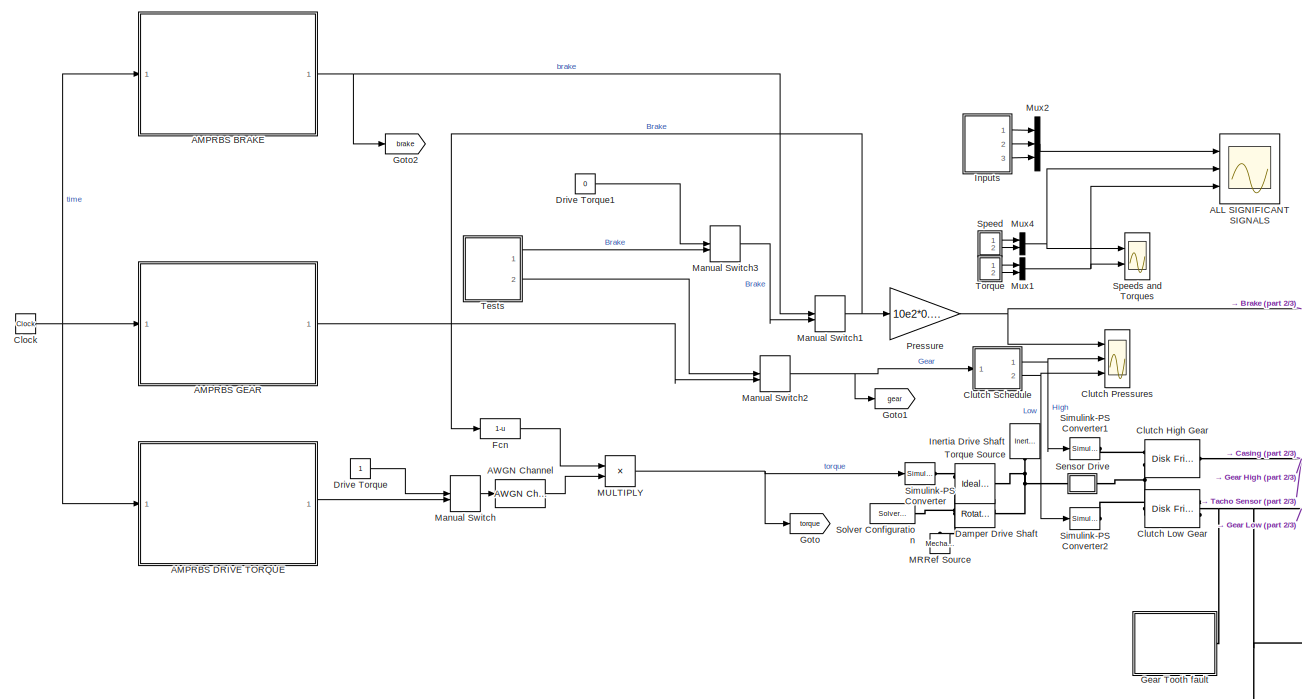
[diagram: root canvas - part 1/3, top left region]
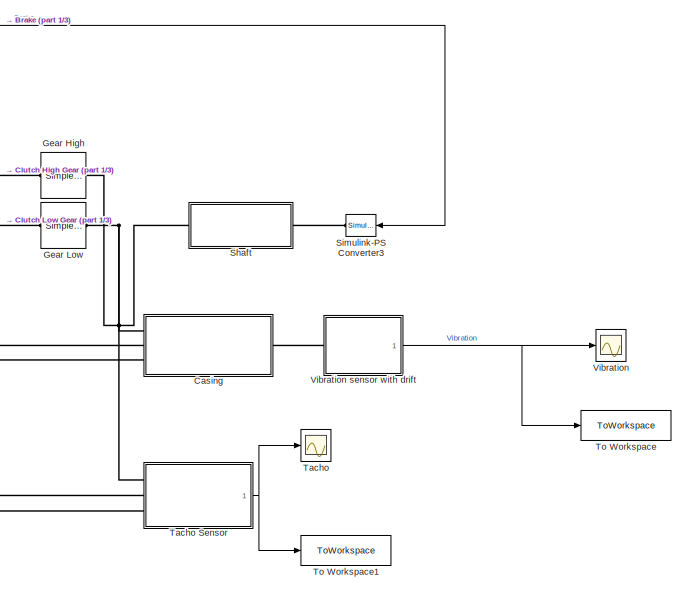
[diagram: root canvas - part 2/3, middle right region]
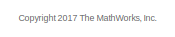
[diagram: root canvas - part 3/3, bottom center region]
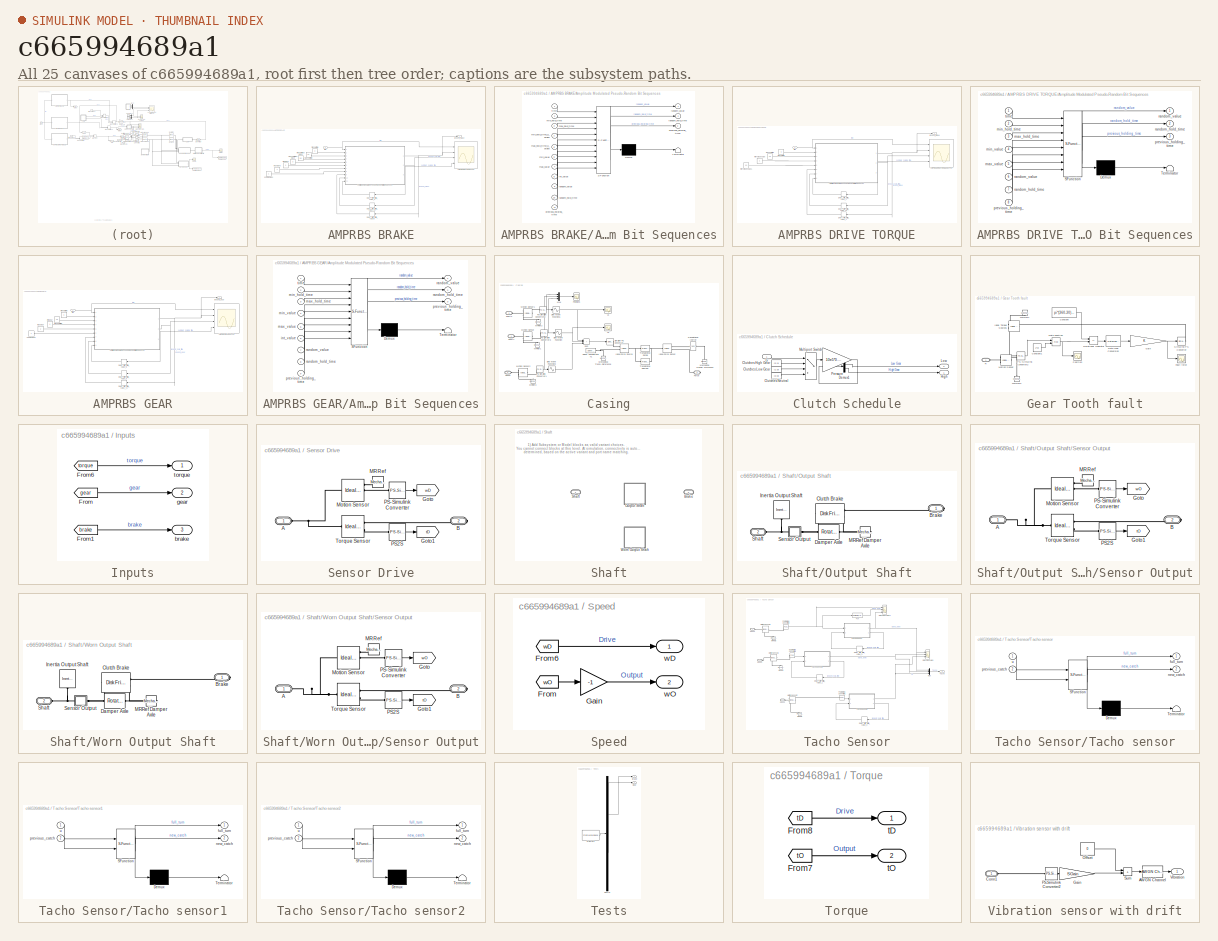
[diagram: thumbnail index - all 25 canvases of the model, root first then tree order]
MODEL slx_c665994689a1
KIND model
CONFIG AbsTol = 1e-1
CONFIG EnableMultiTasking = on
CONFIG FixedStep = 0.1
CONFIG MaxStep = 1e-1
CONFIG MinStep = auto
CONFIG PreLoadFcn = ClutchRadius = 100;\nDampingCoeff = 0.1;\nSGain = 1;\nShaftWear = 0;\nToothFaultGain = 0;\nSDrift = 0;\n
CONFIG RelTol = 1e-1
CONFIG SampleTimeConstraint = Unconstrained
CONFIG SolverName = VariableStepAuto
CONFIG StartTime = 0.0
CONFIG StopTime = 50
BLOCK [Scope] ALL SIGNIFICANT SIGNALS
  Floating = off
  NumInputPorts = 3
  Ports = [3]
  ScopeSpecificationString = Simulink.scopes.TimeScopeBlockCfg('CurrentConfiguration', extmgr.ConfigurationSet(extmgr.Configuration('Core','General UI',true),extmgr.Configuration('Core','Source UI',true),extmgr.Configuration('Sources','WiredSimulink',true,'DataLoggingSaveFormat','StructureWithTime','DataLoggingMaxPoints','50000','DataLoggingDecimation','1','DataLoggingDecimateData',true,'DataLoggingVariableName','ScopeData2')...<+3481ch>
BLOCK [SubSystem] AMPRBS BRAKE
  Ports = [1, 1]
  RequestExecContextInheritance = off
BLOCK [Scope] AMPRBS BRAKE/AMPRBS BRAKE OUTPUT
  Floating = off
  NumInputPorts = 4
  Ports = [4]
  ScopeSpecificationString = Simulink.scopes.TimeScopeBlockCfg('CurrentConfiguration', extmgr.ConfigurationSet(extmgr.Configuration('Core','General UI',true),extmgr.Configuration('Core','Source UI',true),extmgr.Configuration('Sources','WiredSimulink',true,'DataLoggingSaveFormat','StructureWithTime','DataLoggingMaxPoints','50000','DataLoggingDecimation','1','DataLoggingDecimateData',true,'DataLoggingVariableName','ScopeData1')...<+1992ch>
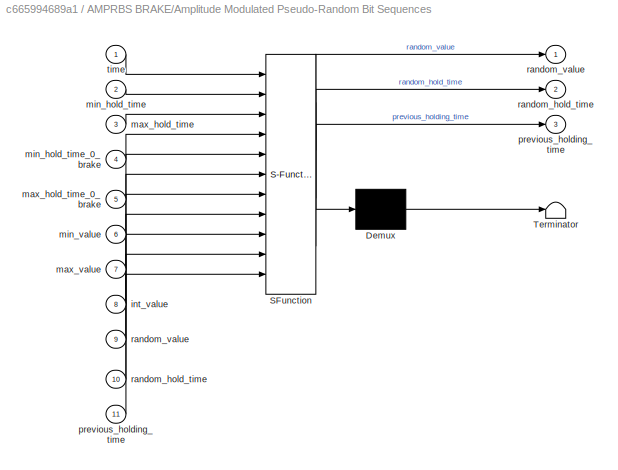
BLOCK [SubSystem] AMPRBS BRAKE/Amplitude Modulated Pseudo-Random Bit Sequences
  ErrorFcn = Stateflow.Translate.translate
  PermitHierarchicalResolution = ExplicitOnly
  Ports = [11, 3]
  RequestExecContextInheritance = off
  SFBlockType = MATLAB Function
  SystemSampleTime = 0.1
  TreatAsAtomicUnit = on
BLOCK [Demux] AMPRBS BRAKE/Amplitude Modulated Pseudo-Random Bit Sequences/ Demux 
  Outputs = 1
  Ports = [1, 1]
BLOCK [S-Function] AMPRBS BRAKE/Amplitude Modulated Pseudo-Random Bit Sequences/ SFunction 
  EnableBusSupport = on
  FunctionName = sf_sfun
  PortCounts = [11 4]
  Ports = [11, 4]
  SFcnIsStateOwnerBlock = off
  SFunctionDeploymentMode = off
  Tag = Stateflow S-Function 1
BLOCK [Terminator] AMPRBS BRAKE/Amplitude Modulated Pseudo-Random Bit Sequences/ Terminator 
BLOCK [Inport] AMPRBS BRAKE/Amplitude Modulated Pseudo-Random Bit Sequences/int_value
  Port = 8
BLOCK [Inport] AMPRBS BRAKE/Amplitude Modulated Pseudo-Random Bit Sequences/max_hold_time
  Port = 3
BLOCK [Inport] AMPRBS BRAKE/Amplitude Modulated Pseudo-Random Bit Sequences/max_hold_time_0_brake
  Port = 5
BLOCK [Inport] AMPRBS BRAKE/Amplitude Modulated Pseudo-Random Bit Sequences/max_value
  Port = 7
BLOCK [Inport] AMPRBS BRAKE/Amplitude Modulated Pseudo-Random Bit Sequences/min_hold_time
  Port = 2
BLOCK [Inport] AMPRBS BRAKE/Amplitude Modulated Pseudo-Random Bit Sequences/min_hold_time_0_brake
  Port = 4
BLOCK [Inport] AMPRBS BRAKE/Amplitude Modulated Pseudo-Random Bit Sequences/min_value
  Port = 6
BLOCK [Outport] AMPRBS BRAKE/Amplitude Modulated Pseudo-Random Bit Sequences/previous_holding_time
  Port = 3
BLOCK [Inport] AMPRBS BRAKE/Amplitude Modulated Pseudo-Random Bit Sequences/previous_holding_time 
  Port = 11
BLOCK [Outport] AMPRBS BRAKE/Amplitude Modulated Pseudo-Random Bit Sequences/random_hold_time
  Port = 2
BLOCK [Inport] AMPRBS BRAKE/Amplitude Modulated Pseudo-Random Bit Sequences/random_hold_time 
  Port = 10
BLOCK [Outport] AMPRBS BRAKE/Amplitude Modulated Pseudo-Random Bit Sequences/random_value
  VectorParamsAs1DForOutWhenUnconnected = off
BLOCK [Inport] AMPRBS BRAKE/Amplitude Modulated Pseudo-Random Bit Sequences/random_value 
  Port = 9
BLOCK [Inport] AMPRBS BRAKE/Amplitude Modulated Pseudo-Random Bit Sequences/time
BLOCK [Delay] AMPRBS BRAKE/Delay_with_initial_value0
  DelayLength = 1
  InitialCondition = 0
  InputPortMap = u0
  NameLocation = top
  Ports = [1, 1]
BLOCK [Delay] AMPRBS BRAKE/Delay_with_initial_value_0
  DelayLength = 1
  InitialCondition = 0
  InputPortMap = u0
  NameLocation = top
  Ports = [1, 1]
BLOCK [Delay] AMPRBS BRAKE/Delay_with_initial_value_10
  DelayLength = 1
  InitialCondition = 10
  InputPortMap = u0
  NameLocation = top
  Ports = [1, 1]
BLOCK [Constant] AMPRBS BRAKE/max brake
  NameLocation = top
BLOCK [Constant] AMPRBS BRAKE/max hold time
  NameLocation = top
  Value = 10
BLOCK [Constant] AMPRBS BRAKE/max hold time 0 brake
  NameLocation = top
  Value = 3
BLOCK [Constant] AMPRBS BRAKE/min brake
  NameLocation = top
  Value = 0
BLOCK [Constant] AMPRBS BRAKE/min hold time
  NameLocation = top
  Value = 3
BLOCK [Constant] AMPRBS BRAKE/min hold time 0 brake
  NameLocation = top
  Value = 0.5
BLOCK [Constant] AMPRBS BRAKE/only int values
  NameLocation = top
BLOCK [Outport] AMPRBS BRAKE/random_brake
BLOCK [Inport] AMPRBS BRAKE/time
BLOCK [SubSystem] AMPRBS DRIVE TORQUE
  Ports = [1, 1]
  RequestExecContextInheritance = off
BLOCK [Scope] AMPRBS DRIVE TORQUE/AMPRBS DRIVE TORQUE OUTPUT
  Floating = off
  NumInputPorts = 4
  Ports = [4]
  ScopeSpecificationString = Simulink.scopes.TimeScopeBlockCfg('CurrentConfiguration', extmgr.ConfigurationSet(extmgr.Configuration('Core','General UI',true),extmgr.Configuration('Core','Source UI',true),extmgr.Configuration('Sources','WiredSimulink',true,'DataLoggingSaveFormat','StructureWithTime','DataLoggingMaxPoints','50000','DataLoggingDecimation','1','DataLoggingDecimateData',true,'DataLoggingVariableName','ScopeData1')...<+1997ch>
BLOCK [SubSystem] AMPRBS DRIVE TORQUE/Amplitude Modulated Pseudo-Random Bit Sequences
  ErrorFcn = Stateflow.Translate.translate
  PermitHierarchicalResolution = ExplicitOnly
  Ports = [8, 3]
  RequestExecContextInheritance = off
  SFBlockType = MATLAB Function
  SystemSampleTime = 0.1
  TreatAsAtomicUnit = on
BLOCK [Demux] AMPRBS DRIVE TORQUE/Amplitude Modulated Pseudo-Random Bit Sequences/ Demux 
  Outputs = 1
  Ports = [1, 1]
BLOCK [S-Function] AMPRBS DRIVE TORQUE/Amplitude Modulated Pseudo-Random Bit Sequences/ SFunction 
  EnableBusSupport = on
  FunctionName = sf_sfun
  PortCounts = [8 4]
  Ports = [8, 4]
  SFcnIsStateOwnerBlock = off
  SFunctionDeploymentMode = off
  Tag = Stateflow S-Function 2
BLOCK [Terminator] AMPRBS DRIVE TORQUE/Amplitude Modulated Pseudo-Random Bit Sequences/ Terminator 
BLOCK [Inport] AMPRBS DRIVE TORQUE/Amplitude Modulated Pseudo-Random Bit Sequences/max_hold_time
  Port = 3
BLOCK [Inport] AMPRBS DRIVE TORQUE/Amplitude Modulated Pseudo-Random Bit Sequences/max_value
  Port = 5
BLOCK [Inport] AMPRBS DRIVE TORQUE/Amplitude Modulated Pseudo-Random Bit Sequences/min_hold_time
  Port = 2
BLOCK [Inport] AMPRBS DRIVE TORQUE/Amplitude Modulated Pseudo-Random Bit Sequences/min_value
  Port = 4
BLOCK [Outport] AMPRBS DRIVE TORQUE/Amplitude Modulated Pseudo-Random Bit Sequences/previous_holding_time
  Port = 3
BLOCK [Inport] AMPRBS DRIVE TORQUE/Amplitude Modulated Pseudo-Random Bit Sequences/previous_holding_time 
  Port = 8
BLOCK [Outport] AMPRBS DRIVE TORQUE/Amplitude Modulated Pseudo-Random Bit Sequences/random_hold_time
  Port = 2
BLOCK [Inport] AMPRBS DRIVE TORQUE/Amplitude Modulated Pseudo-Random Bit Sequences/random_hold_time 
  Port = 7
BLOCK [Outport] AMPRBS DRIVE TORQUE/Amplitude Modulated Pseudo-Random Bit Sequences/random_value
  VectorParamsAs1DForOutWhenUnconnected = off
BLOCK [Inport] AMPRBS DRIVE TORQUE/Amplitude Modulated Pseudo-Random Bit Sequences/random_value 
  Port = 6
BLOCK [Inport] AMPRBS DRIVE TORQUE/Amplitude Modulated Pseudo-Random Bit Sequences/time
BLOCK [Delay] AMPRBS DRIVE TORQUE/Delay_with_initial_value_0
  DelayLength = 1
  InitialCondition = 0
  InputPortMap = u0
  NameLocation = top
  Ports = [1, 1]
BLOCK [Delay] AMPRBS DRIVE TORQUE/Delay_with_initial_value_1
  DelayLength = 1
  InitialCondition = 1
  InputPortMap = u0
  NameLocation = top
  Ports = [1, 1]
BLOCK [Delay] AMPRBS DRIVE TORQUE/Delay_with_initial_value_10
  DelayLength = 1
  InitialCondition = 10
  InputPortMap = u0
  NameLocation = top
  Ports = [1, 1]
BLOCK [Constant] AMPRBS DRIVE TORQUE/max hold time
  NameLocation = top
  Value = 10
BLOCK [Constant] AMPRBS DRIVE TORQUE/min Torque value
  NameLocation = top
BLOCK [Constant] AMPRBS DRIVE TORQUE/min Torque value1
  NameLocation = top
  Value = 10
BLOCK [Constant] AMPRBS DRIVE TORQUE/min hold time
  NameLocation = top
  Value = 3
BLOCK [Outport] AMPRBS DRIVE TORQUE/random_torque
BLOCK [Inport] AMPRBS DRIVE TORQUE/time
BLOCK [SubSystem] AMPRBS GEAR
  Ports = [1, 1]
  RequestExecContextInheritance = off
BLOCK [Scope] AMPRBS GEAR/AMPRBS GEAR OUTPUT
  Floating = off
  NumInputPorts = 4
  Ports = [4]
  ScopeSpecificationString = Simulink.scopes.TimeScopeBlockCfg('CurrentConfiguration', extmgr.ConfigurationSet(extmgr.Configuration('Core','General UI',true),extmgr.Configuration('Core','Source UI',true),extmgr.Configuration('Sources','WiredSimulink',true,'DataLoggingSaveFormat','StructureWithTime','DataLoggingMaxPoints','50000','DataLoggingDecimation','1','DataLoggingDecimateData',true,'DataLoggingVariableName','ScopeData1')...<+1989ch>
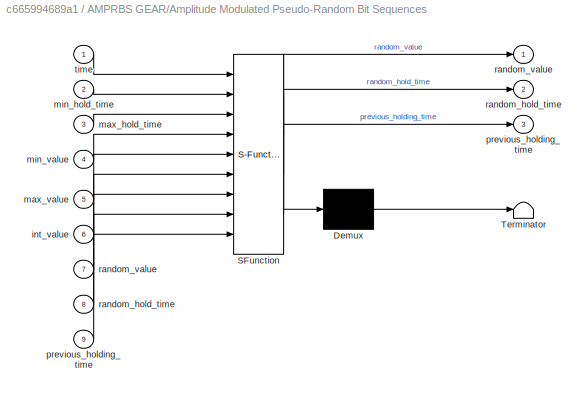
BLOCK [SubSystem] AMPRBS GEAR/Amplitude Modulated Pseudo-Random Bit Sequences
  ErrorFcn = Stateflow.Translate.translate
  PermitHierarchicalResolution = ExplicitOnly
  Ports = [9, 3]
  RequestExecContextInheritance = off
  SFBlockType = MATLAB Function
  SystemSampleTime = 0.1
  TreatAsAtomicUnit = on
BLOCK [Demux] AMPRBS GEAR/Amplitude Modulated Pseudo-Random Bit Sequences/ Demux 
  Outputs = 1
  Ports = [1, 1]
BLOCK [S-Function] AMPRBS GEAR/Amplitude Modulated Pseudo-Random Bit Sequences/ SFunction 
  EnableBusSupport = on
  FunctionName = sf_sfun
  PortCounts = [9 4]
  Ports = [9, 4]
  SFcnIsStateOwnerBlock = off
  SFunctionDeploymentMode = off
  Tag = Stateflow S-Function 3
BLOCK [Terminator] AMPRBS GEAR/Amplitude Modulated Pseudo-Random Bit Sequences/ Terminator 
BLOCK [Inport] AMPRBS GEAR/Amplitude Modulated Pseudo-Random Bit Sequences/int_value
  Port = 6
BLOCK [Inport] AMPRBS GEAR/Amplitude Modulated Pseudo-Random Bit Sequences/max_hold_time
  Port = 3
BLOCK [Inport] AMPRBS GEAR/Amplitude Modulated Pseudo-Random Bit Sequences/max_value
  Port = 5
BLOCK [Inport] AMPRBS GEAR/Amplitude Modulated Pseudo-Random Bit Sequences/min_hold_time
  Port = 2
BLOCK [Inport] AMPRBS GEAR/Amplitude Modulated Pseudo-Random Bit Sequences/min_value
  Port = 4
BLOCK [Outport] AMPRBS GEAR/Amplitude Modulated Pseudo-Random Bit Sequences/previous_holding_time
  Port = 3
BLOCK [Inport] AMPRBS GEAR/Amplitude Modulated Pseudo-Random Bit Sequences/previous_holding_time 
  Port = 9
BLOCK [Outport] AMPRBS GEAR/Amplitude Modulated Pseudo-Random Bit Sequences/random_hold_time
  Port = 2
BLOCK [Inport] AMPRBS GEAR/Amplitude Modulated Pseudo-Random Bit Sequences/random_hold_time 
  Port = 8
BLOCK [Outport] AMPRBS GEAR/Amplitude Modulated Pseudo-Random Bit Sequences/random_value
  VectorParamsAs1DForOutWhenUnconnected = off
BLOCK [Inport] AMPRBS GEAR/Amplitude Modulated Pseudo-Random Bit Sequences/random_value 
  Port = 7
BLOCK [Inport] AMPRBS GEAR/Amplitude Modulated Pseudo-Random Bit Sequences/time
BLOCK [Delay] AMPRBS GEAR/Delay_with_initial_value_0
  DelayLength = 1
  InitialCondition = 0
  InputPortMap = u0
  NameLocation = top
  Ports = [1, 1]
BLOCK [Delay] AMPRBS GEAR/Delay_with_initial_value_5
  DelayLength = 1
  InitialCondition = 5
  InputPortMap = u0
  NameLocation = top
  Ports = [1, 1]
BLOCK [Delay] AMPRBS GEAR/Delay_with_initial_value__0
  DelayLength = 1
  InitialCondition = 0
  InputPortMap = u0
  NameLocation = top
  Ports = [1, 1]
BLOCK [Constant] AMPRBS GEAR/max Gear
  NameLocation = top
  Value = 2
BLOCK [Constant] AMPRBS GEAR/max hold time
  NameLocation = top
  Value = 10
BLOCK [Constant] AMPRBS GEAR/min Gear
  NameLocation = top
BLOCK [Constant] AMPRBS GEAR/min hold time
  NameLocation = top
  Value = 3
BLOCK [Constant] AMPRBS GEAR/only int values
  NameLocation = top
BLOCK [Outport] AMPRBS GEAR/random_gear
BLOCK [Inport] AMPRBS GEAR/time
BLOCK [Reference] AWGN Channel  REF=commchan3/AWGN
Channel
  Ports = [1, 1]
  SourceBlock = commchan3/AWGN\nChannel
  SourceProductBaseCode = CM
  SourceType = AWGN Channel
  UserDataPersistent = on
BLOCK [SubSystem] Casing
  Ports = [0, 0, 0, 0, 0, 3, 1]
  RequestExecContextInheritance = off
BLOCK [PMIOPort] Casing/Conn2
  Port = 2
  Side = Left
BLOCK [PMIOPort] Casing/Force
  Port = 4
  Side = Right
BLOCK [Reference] Casing/Ideal Force Sensor  REF=fl_lib/Mechanical/Mechanical Sensors/Ideal Force Sensor
  Ports = [0, 0, 0, 0, 0, 1, 2]
  SourceBlock = fl_lib/Mechanical/Mechanical Sensors/Ideal Force Sensor
  SourceProductName = Foundation Library
  SourceType = Ideal Force Sensor
BLOCK [Reference] Casing/Ideal Force Source  REF=fl_lib/Mechanical/Mechanical Sources/Ideal Force Source
  Ports = [0, 0, 0, 0, 0, 1, 2]
  SourceBlock = fl_lib/Mechanical/Mechanical Sources/Ideal Force Source
  SourceProductName = Foundation Library
  SourceType = Ideal Force Source
BLOCK [Reference] Casing/MRRef1  REF=fl_lib/Mechanical/Rotational Elements/Mechanical
Rotational Reference
  NameLocation = right
  Ports = [0, 0, 0, 0, 0, 1]
  SourceBlock = fl_lib/Mechanical/Rotational Elements/Mechanical\nRotational Reference
  SourceProductName = Foundation Library
  SourceType = Mechanical\nRotational Reference
BLOCK [Reference] Casing/MRRef2  REF=fl_lib/Mechanical/Rotational Elements/Mechanical
Rotational Reference
  NameLocation = right
  Ports = [0, 0, 0, 0, 0, 1]
  SourceBlock = fl_lib/Mechanical/Rotational Elements/Mechanical\nRotational Reference
  SourceProductName = Foundation Library
  SourceType = Mechanical\nRotational Reference
BLOCK [Reference] Casing/MRRef3  REF=fl_lib/Mechanical/Rotational Elements/Mechanical
Rotational Reference
  NameLocation = right
  Ports = [0, 0, 0, 0, 0, 1]
  SourceBlock = fl_lib/Mechanical/Rotational Elements/Mechanical\nRotational Reference
  SourceProductName = Foundation Library
  SourceType = Mechanical\nRotational Reference
BLOCK [Reference] Casing/Mechanical Translational Reference  REF=fl_lib/Mechanical/Translational
Elements/Mechanical
Translational
Reference
  NameLocation = right
  Ports = [0, 0, 0, 0, 0, 1]
  SourceBlock = fl_lib/Mechanical/Translational\nElements/Mechanical\nTranslational\nReference
  SourceProductName = Foundation Library
  SourceType = Mechanical\nTranslational\nReference
BLOCK [Reference] Casing/Mechanical Translational Reference2  REF=fl_lib/Mechanical/Translational
Elements/Mechanical
Translational
Reference
  NameLocation = right
  Ports = [0, 0, 0, 0, 0, 1]
  SourceBlock = fl_lib/Mechanical/Translational\nElements/Mechanical\nTranslational\nReference
  SourceProductName = Foundation Library
  SourceType = Mechanical\nTranslational\nReference
BLOCK [Reference] Casing/Motion Sensor  REF=fl_lib/Mechanical/Mechanical Sensors/Ideal Rotational
Motion Sensor
  Ports = [0, 0, 0, 0, 0, 1, 3]
  SourceBlock = fl_lib/Mechanical/Mechanical Sensors/Ideal Rotational\nMotion Sensor
  SourceProductName = Foundation Library
  SourceType = Ideal Rotational\nMotion Sensor
BLOCK [Reference] Casing/Motion Sensor1  REF=fl_lib/Mechanical/Mechanical Sensors/Ideal Rotational
Motion Sensor
  Ports = [0, 0, 0, 0, 0, 1, 3]
  SourceBlock = fl_lib/Mechanical/Mechanical Sensors/Ideal Rotational\nMotion Sensor
  SourceProductName = Foundation Library
  SourceType = Ideal Rotational\nMotion Sensor
BLOCK [Reference] Casing/Motion Sensor2  REF=fl_lib/Mechanical/Mechanical Sensors/Ideal Rotational
Motion Sensor
  Ports = [0, 0, 0, 0, 0, 1, 3]
  SourceBlock = fl_lib/Mechanical/Mechanical Sensors/Ideal Rotational\nMotion Sensor
  SourceProductName = Foundation Library
  SourceType = Ideal Rotational\nMotion Sensor
BLOCK [Mux] Casing/Mux
  DisplayOption = bar
  Inputs = 3
  Ports = [3, 1]
BLOCK [Reference] Casing/PS-Simulink Converter1  REF=nesl_utility/PS-Simulink
Converter
  Ports = [0, 1, 0, 0, 0, 1]
  SourceBlock = nesl_utility/PS-Simulink\nConverter
  SourceProductName = Utilities
  SourceType = PS-Simulink\nConverter
BLOCK [Reference] Casing/PS-Simulink Converter3  REF=nesl_utility/PS-Simulink
Converter
  Ports = [0, 1, 0, 0, 0, 1]
  SourceBlock = nesl_utility/PS-Simulink\nConverter
  SourceProductName = Utilities
  SourceType = PS-Simulink\nConverter
BLOCK [Reference] Casing/PS-Simulink Converter4  REF=nesl_utility/PS-Simulink
Converter
  Ports = [0, 1, 0, 0, 0, 1]
  SourceBlock = nesl_utility/PS-Simulink\nConverter
  SourceProductName = Utilities
  SourceType = PS-Simulink\nConverter
BLOCK [Scope] Casing/Positions
  Floating = off
  NumInputPorts = 1
  Ports = [1]
  ScopeSpecificationString = Simulink.scopes.TimeScopeBlockCfg('CurrentConfiguration', extmgr.ConfigurationSet(extmgr.Configuration('Core','General UI',true),extmgr.Configuration('Core','Source UI',true),extmgr.Configuration('Sources','WiredSimulink',true,'DataLoggingSaveFormat','StructureWithTime','DataLoggingMaxPoints','50000','DataLoggingDecimation','1','DataLoggingDecimateData',true,'DataLoggingVariableName','ScopeData1')...<+2017ch>
BLOCK [PMIOPort] Casing/Shaft1
  NameLocation = top
  Side = Left
BLOCK [PMIOPort] Casing/Shaft2
  NameLocation = top
  Port = 3
  Side = Left
BLOCK [Reference] Casing/Simulink-PS Converter  REF=nesl_utility/Simulink-PS
Converter
  Ports = [1, 0, 0, 0, 0, 0, 1]
  SourceBlock = nesl_utility/Simulink-PS\nConverter
  SourceProductName = Utilities
  SourceType = Simulink-PS\nConverter
BLOCK [Sin] Casing/Sine Wave Function
  Ports = [1, 1]
  SampleTime = 0
  TimeSource = Use external signal
BLOCK [Sin] Casing/Sine Wave Function1
  Ports = [1, 1]
  SampleTime = 0
  TimeSource = Use external signal
BLOCK [Sin] Casing/Sine Wave Function2
  Ports = [1, 1]
  SampleTime = 0
  TimeSource = Use external signal
BLOCK [Reference] Casing/Solver Configuration1  REF=nesl_utility/Solver
Configuration
  Ports = [0, 0, 0, 0, 0, 0, 1]
  SourceBlock = nesl_utility/Solver\nConfiguration
  SourceProductName = Utilities
  SourceType = Solver\nConfiguration
BLOCK [Sum] Casing/Sum
  IconShape = rectangular
  Inputs = +++
  Ports = [3, 1]
BLOCK [Reference] Casing/Translational Damper  REF=fl_lib/Mechanical/Translational
Elements/Translational Damper
  Ports = [0, 0, 0, 0, 0, 1, 1]
  SourceBlock = fl_lib/Mechanical/Translational\nElements/Translational Damper
  SourceProductName = Foundation Library
  SourceType = Translational Damper
BLOCK [Reference] Casing/Translational Inerter  REF=fl_lib/Mechanical/Translational
Elements/Translational
Inerter
  Ports = [0, 0, 0, 0, 0, 1, 1]
  SourceBlock = fl_lib/Mechanical/Translational\nElements/Translational\nInerter
  SourceProductName = Foundation Library
  SourceType = Translational\nInerter
BLOCK [Reference] Casing/Translational Spring  REF=fl_lib/Mechanical/Translational
Elements/Translational Spring
  Ports = [0, 0, 0, 0, 0, 1, 1]
  SourceBlock = fl_lib/Mechanical/Translational\nElements/Translational Spring
  SourceProductName = Foundation Library
  SourceType = Translational Spring
BLOCK [Scope] Casing/V1
  Floating = off
  NumInputPorts = 1
  Ports = [1]
  ScopeSpecificationString = Simulink.scopes.TimeScopeBlockCfg('CurrentConfiguration', extmgr.ConfigurationSet(extmgr.Configuration('Core','General UI',true),extmgr.Configuration('Core','Source UI',true),extmgr.Configuration('Sources','WiredSimulink',true,'DataLoggingSaveFormat','StructureWithTime','DataLoggingMaxPoints','50000','DataLoggingDecimation','1','DataLoggingDecimateData',true,'DataLoggingVariableName','CaseForce1')...<+1979ch>
BLOCK [Scope] Casing/V2
  Floating = off
  NumInputPorts = 1
  Ports = [1]
  ScopeSpecificationString = Simulink.scopes.TimeScopeBlockCfg('CurrentConfiguration', extmgr.ConfigurationSet(extmgr.Configuration('Core','General UI',true),extmgr.Configuration('Core','Source UI',true),extmgr.Configuration('Sources','WiredSimulink',true,'DataLoggingSaveFormat','StructureWithTime','DataLoggingMaxPoints','50000','DataLoggingDecimation','1','DataLoggingDecimateData',true,'DataLoggingVariableName','CaseForce2')...<+1978ch>
BLOCK [Clock] Clock
BLOCK [Reference] Clutch High Gear  REF=sdl_lib/Clutches/Disk Friction Clutch
  NameLocation = top
  Ports = [0, 0, 0, 0, 0, 2, 1]
  SourceBlock = sdl_lib/Clutches/Disk Friction Clutch
  SourceProductName = Driveline
  SourceType = Disk Friction Clutch
BLOCK [Reference] Clutch Low Gear  REF=sdl_lib/Clutches/Disk Friction Clutch
  Ports = [0, 0, 0, 0, 0, 2, 1]
  SourceBlock = sdl_lib/Clutches/Disk Friction Clutch
  SourceProductName = Driveline
  SourceType = Disk Friction Clutch
BLOCK [Scope] Clutch Pressures
  Floating = off
  NumInputPorts = 3
  Ports = [3]
  ScopeSpecificationString = Simulink.scopes.TimeScopeBlockCfg('CurrentConfiguration', extmgr.ConfigurationSet(extmgr.Configuration('Core','General UI',true),extmgr.Configuration('Core','Source UI',true),extmgr.Configuration('Sources','WiredSimulink',true,'DataLoggingVariableName','ScopeData1','DataLoggingSaveFormat','StructureWithTime','DataLoggingMaxPoints','50000','DataLoggingLimitDataPoints',true,'DataLoggingDecimation','...<+2007ch>
BLOCK [SubSystem] Clutch Schedule
  Ports = [1, 2]
  RequestExecContextInheritance = off
BLOCK [Constant] Clutch Schedule/Clutches High Gear
  Value = [0 1]
BLOCK [Constant] Clutch Schedule/Clutches Low Gear
  Value = [1 0]
BLOCK [Constant] Clutch Schedule/Clutches Neutral
  Value = [0 0]
BLOCK [Demux] Clutch Schedule/Demux1
  Outputs = 2
  Ports = [1, 2]
BLOCK [Inport] Clutch Schedule/G
BLOCK [Outport] Clutch Schedule/High
  VectorParamsAs1DForOutWhenUnconnected = off
BLOCK [Outport] Clutch Schedule/Low
  NameLocation = top
  Port = 2
  VectorParamsAs1DForOutWhenUnconnected = off
BLOCK [MultiPortSwitch] Clutch Schedule/Multiport Switch
  DataPortIndices = {2,1,0}
  DataPortOrder = Specify indices
  InputSameDT = off
  Ports = [4, 1]
  SaturateOnIntegerOverflow = off
BLOCK [Gain] Clutch Schedule/Pressure
  Gain = 10e5*0.05
  OutDataTypeStr = Inherit: Same as input
  ParamDataTypeStr = Inherit: Same as input
  SaturateOnIntegerOverflow = on
BLOCK [Reference] Damper Drive Shaft  REF=fl_lib/Mechanical/Rotational Elements/Rotational Damper
  Ports = [0, 0, 0, 0, 0, 1, 1]
  SourceBlock = fl_lib/Mechanical/Rotational Elements/Rotational Damper
  SourceProductName = Foundation Library
  SourceType = Rotational Damper
BLOCK [Constant] Drive Torque
  NameLocation = top
BLOCK [Constant] Drive Torque1
  NameLocation = top
  Value = 0
BLOCK [Fcn] Fcn
  Expr = 1-u
BLOCK [Reference] Gear High  REF=sdl_lib/Gears/Simple Gear
  NameLocation = top
  Ports = [0, 0, 0, 0, 0, 1, 1]
  SourceBlock = sdl_lib/Gears/Simple Gear
  SourceProductName = Driveline
  SourceType = Simple Gear
BLOCK [Reference] Gear Low  REF=sdl_lib/Gears/Simple Gear
  Ports = [0, 0, 0, 0, 0, 1, 1]
  SourceBlock = sdl_lib/Gears/Simple Gear
  SourceProductName = Driveline
  SourceType = Simple Gear
BLOCK [SubSystem] Gear Tooth fault
  Ports = [0, 0, 0, 0, 0, 1]
  RequestExecContextInheritance = off
BLOCK [Constant] Gear Tooth fault/Constant
  Value = pi*(360-30)/180
BLOCK [Constant] Gear Tooth fault/Constant1
  Value = 2*pi
BLOCK [DataTypeConversion] Gear Tooth fault/Data Type Conversion
  OutDataTypeStr = double
  RndMeth = Floor
  SaturateOnIntegerOverflow = off
BLOCK [Scope] Gear Tooth fault/Fault force
  Floating = off
  NumInputPorts = 1
  Ports = [1]
  ScopeSpecificationString = Simulink.scopes.TimeScopeBlockCfg('CurrentConfiguration', extmgr.ConfigurationSet(extmgr.Configuration('Core','General UI',true),extmgr.Configuration('Core','Source UI',true),extmgr.Configuration('Sources','WiredSimulink',true,'DataLoggingSaveFormat','StructureWithTime','DataLoggingMaxPoints','50000','DataLoggingLimitDataPoints',true,'DataLoggingDecimation','1','DataLoggingDecimateData',true,'Data...<+2009ch>
BLOCK [Gain] Gear Tooth fault/Gain
BLOCK [Reference] Gear Tooth fault/Ideal Torque Source1  REF=fl_lib/Mechanical/Mechanical Sources/Ideal Torque Source
  NameLocation = top
  Ports = [0, 0, 0, 0, 0, 1, 2]
  SourceBlock = fl_lib/Mechanical/Mechanical Sources/Ideal Torque Source
  SourceProductName = Foundation Library
  SourceType = Ideal Torque Source
BLOCK [Reference] Gear Tooth fault/MRRef1  REF=fl_lib/Mechanical/Rotational Elements/Mechanical
Rotational Reference
  NameLocation = left
  Ports = [0, 0, 0, 0, 0, 1]
  SourceBlock = fl_lib/Mechanical/Rotational Elements/Mechanical\nRotational Reference
  SourceProductName = Foundation Library
  SourceType = Mechanical\nRotational Reference
BLOCK [Reference] Gear Tooth fault/MRRef2  REF=fl_lib/Mechanical/Rotational Elements/Mechanical
Rotational Reference
  NameLocation = right
  Ports = [0, 0, 0, 0, 0, 1]
  SourceBlock = fl_lib/Mechanical/Rotational Elements/Mechanical\nRotational Reference
  SourceProductName = Foundation Library
  SourceType = Mechanical\nRotational Reference
BLOCK [Math] Gear Tooth fault/Math Function
  Operator = mod
  Ports = [2, 1]
  SignedPower = on
BLOCK [Reference] Gear Tooth fault/Motion Sensor  REF=fl_lib/Mechanical/Mechanical Sensors/Ideal Rotational
Motion Sensor
  Ports = [0, 0, 0, 0, 0, 1, 3]
  SourceBlock = fl_lib/Mechanical/Mechanical Sensors/Ideal Rotational\nMotion Sensor
  SourceProductName = Foundation Library
  SourceType = Ideal Rotational\nMotion Sensor
BLOCK [Reference] Gear Tooth fault/PS-Simulink Converter2  REF=nesl_utility/PS-Simulink
Converter
  Ports = [0, 1, 0, 0, 0, 1]
  SourceBlock = nesl_utility/PS-Simulink\nConverter
  SourceProductName = Utilities
  SourceType = PS-Simulink\nConverter
BLOCK [Scope] Gear Tooth fault/Position
  Floating = off
  NumInputPorts = 1
  Ports = [1]
  ScopeSpecificationString = Simulink.scopes.TimeScopeBlockCfg('CurrentConfiguration', extmgr.ConfigurationSet(extmgr.Configuration('Core','General UI',true),extmgr.Configuration('Core','Source UI',true),extmgr.Configuration('Sources','WiredSimulink',true,'DataLoggingSaveFormat','StructureWithTime','DataLoggingMaxPoints','50000','DataLoggingLimitDataPoints',true,'DataLoggingDecimation','1','DataLoggingDecimateData',true,'Data...<+1961ch>
BLOCK [PMIOPort] Gear Tooth fault/R
  Side = Left
BLOCK [RelationalOperator] Gear Tooth fault/Relational Operator
  InputSameDT = off
  Operator = <=
  OutDataTypeStr = boolean
  Ports = [2, 1]
  RndMeth = Simplest
BLOCK [Reference] Gear Tooth fault/Simulink-PS Converter  REF=nesl_utility/Simulink-PS
Converter
  Ports = [1, 0, 0, 0, 0, 0, 1]
  SourceBlock = nesl_utility/Simulink-PS\nConverter
  SourceProductName = Utilities
  SourceType = Simulink-PS\nConverter
BLOCK [Goto] Goto
  GotoTag = torque
  TagVisibility = global
BLOCK [Goto] Goto1
  GotoTag = gear
  TagVisibility = global
BLOCK [Goto] Goto2
  GotoTag = brake
  TagVisibility = global
BLOCK [Reference] Inertia Drive Shaft  REF=fl_lib/Mechanical/Rotational Elements/Inertia
  NameLocation = left
  Ports = [0, 0, 0, 0, 0, 1]
  SourceBlock = fl_lib/Mechanical/Rotational Elements/Inertia
  SourceProductName = Foundation Library
  SourceType = Inertia
BLOCK [SubSystem] Inputs
  NameLocation = top
  Ports = [0, 3]
  RequestExecContextInheritance = off
BLOCK [From] Inputs/From
  GotoTag = gear
  TagVisibility = global
BLOCK [From] Inputs/From1
  GotoTag = brake
  TagVisibility = global
BLOCK [From] Inputs/From6
  GotoTag = torque
  TagVisibility = global
BLOCK [Outport] Inputs/brake
  Port = 3
  VectorParamsAs1DForOutWhenUnconnected = off
BLOCK [Outport] Inputs/gear
  Port = 2
  VectorParamsAs1DForOutWhenUnconnected = off
BLOCK [Outport] Inputs/torque
  VectorParamsAs1DForOutWhenUnconnected = off
BLOCK [Reference] MRRef Source  REF=fl_lib/Mechanical/Rotational Elements/Mechanical
Rotational Reference
  NameLocation = right
  Ports = [0, 0, 0, 0, 0, 1]
  SourceBlock = fl_lib/Mechanical/Rotational Elements/Mechanical\nRotational Reference
  SourceProductName = Foundation Library
  SourceType = Mechanical\nRotational Reference
BLOCK [Product] MULTIPLY
  Inputs = **
  Ports = [2, 1]
BLOCK [ManualSwitch] Manual Switch
BLOCK [ManualSwitch] Manual Switch1
  CurrentSetting = 0
BLOCK [ManualSwitch] Manual Switch2
BLOCK [ManualSwitch] Manual Switch3
BLOCK [Mux] Mux1
  DisplayOption = bar
  Inputs = 2
  Ports = [2, 1]
BLOCK [Mux] Mux2
  DisplayOption = bar
  Inputs = 3
  Ports = [3, 1]
BLOCK [Mux] Mux4
  DisplayOption = bar
  Inputs = 2
  Ports = [2, 1]
BLOCK [Gain] Pressure
  Gain = 10e2*0.03
  NameLocation = top
  OutDataTypeStr = Inherit: Same as input
  ParamDataTypeStr = Inherit: Same as input
  SaturateOnIntegerOverflow = on
BLOCK [SubSystem] Sensor Drive
  Ports = [0, 0, 0, 0, 0, 1, 1]
  RequestExecContextInheritance = off
BLOCK [PMIOPort] Sensor Drive/A
  Side = Left
BLOCK [PMIOPort] Sensor Drive/B
  NameLocation = top
  Port = 2
  Side = Right
BLOCK [Goto] Sensor Drive/Goto
  GotoTag = wD
  TagVisibility = global
BLOCK [Goto] Sensor Drive/Goto1
  GotoTag = tD
  TagVisibility = global
BLOCK [Reference] Sensor Drive/MRRef  REF=fl_lib/Mechanical/Rotational Elements/Mechanical
Rotational Reference
  NameLocation = top
  Ports = [0, 0, 0, 0, 0, 1]
  SourceBlock = fl_lib/Mechanical/Rotational Elements/Mechanical\nRotational Reference
  SourceProductName = Foundation Library
  SourceType = Mechanical\nRotational Reference
BLOCK [Reference] Sensor Drive/Motion Sensor  REF=fl_lib/Mechanical/Mechanical Sensors/Ideal Rotational
Motion Sensor
  Ports = [0, 0, 0, 0, 0, 1, 3]
  SourceBlock = fl_lib/Mechanical/Mechanical Sensors/Ideal Rotational\nMotion Sensor
  SourceProductName = Foundation Library
  SourceType = Ideal Rotational\nMotion Sensor
BLOCK [Reference] Sensor Drive/PS-Simulink Converter  REF=nesl_utility/PS-Simulink
Converter
  Ports = [0, 1, 0, 0, 0, 1]
  SourceBlock = nesl_utility/PS-Simulink\nConverter
  SourceProductName = Utilities
  SourceType = PS-Simulink\nConverter
BLOCK [Reference] Sensor Drive/PS2S  REF=nesl_utility/PS-Simulink
Converter
  Ports = [0, 1, 0, 0, 0, 1]
  SourceBlock = nesl_utility/PS-Simulink\nConverter
  SourceProductName = Utilities
  SourceType = PS-Simulink\nConverter
BLOCK [Reference] Sensor Drive/Torque Sensor  REF=fl_lib/Mechanical/Mechanical Sensors/Ideal Torque Sensor
  Ports = [0, 0, 0, 0, 0, 1, 2]
  SourceBlock = fl_lib/Mechanical/Mechanical Sensors/Ideal Torque Sensor
  SourceProductName = Foundation Library
  SourceType = Ideal Torque Sensor
BLOCK [SubSystem] Shaft
  Ports = [0, 0, 0, 0, 0, 1, 1]
  RequestExecContextInheritance = off
  Variant = on
BLOCK [PMIOPort] Shaft/Brake
  Port = 2
  Side = Right
BLOCK [SubSystem] Shaft/Output Shaft
  Ports = [0, 0, 0, 0, 0, 1, 1]
  RequestExecContextInheritance = off
  VariantControl = ShaftWear >=0
BLOCK [PMIOPort] Shaft/Output Shaft/Brake
  Side = Right
BLOCK [Reference] Shaft/Output Shaft/Clutch Brake  REF=sdl_lib/Clutches/Disk Friction Clutch
  NameLocation = top
  Ports = [0, 0, 0, 0, 0, 2, 1]
  SourceBlock = sdl_lib/Clutches/Disk Friction Clutch
  SourceProductName = Driveline
  SourceType = Disk Friction Clutch
BLOCK [Reference] Shaft/Output Shaft/Damper Axle  REF=fl_lib/Mechanical/Rotational Elements/Rotational Damper
  Ports = [0, 0, 0, 0, 0, 1, 1]
  SourceBlock = fl_lib/Mechanical/Rotational Elements/Rotational Damper
  SourceProductName = Foundation Library
  SourceType = Rotational Damper
BLOCK [Reference] Shaft/Output Shaft/Inertia Output Shaft  REF=fl_lib/Mechanical/Rotational Elements/Inertia
  NameLocation = right
  Ports = [0, 0, 0, 0, 0, 1]
  SourceBlock = fl_lib/Mechanical/Rotational Elements/Inertia
  SourceProductName = Foundation Library
  SourceType = Inertia
BLOCK [Reference] Shaft/Output Shaft/MRRef Damper Axle  REF=fl_lib/Mechanical/Rotational Elements/Mechanical
Rotational Reference
  NameLocation = top
  Ports = [0, 0, 0, 0, 0, 1]
  SourceBlock = fl_lib/Mechanical/Rotational Elements/Mechanical\nRotational Reference
  SourceProductName = Foundation Library
  SourceType = Mechanical\nRotational Reference
BLOCK [SubSystem] Shaft/Output Shaft/Sensor Output
  Ports = [0, 0, 0, 0, 0, 1, 1]
  RequestExecContextInheritance = off
BLOCK [PMIOPort] Shaft/Output Shaft/Sensor Output/A
  Side = Left
BLOCK [PMIOPort] Shaft/Output Shaft/Sensor Output/B
  Port = 2
  Side = Right
BLOCK [Goto] Shaft/Output Shaft/Sensor Output/Goto
  GotoTag = wO
  TagVisibility = global
BLOCK [Goto] Shaft/Output Shaft/Sensor Output/Goto1
  GotoTag = tO
  TagVisibility = global
BLOCK [Reference] Shaft/Output Shaft/Sensor Output/MRRef  REF=fl_lib/Mechanical/Rotational Elements/Mechanical
Rotational Reference
  NameLocation = top
  Ports = [0, 0, 0, 0, 0, 1]
  SourceBlock = fl_lib/Mechanical/Rotational Elements/Mechanical\nRotational Reference
  SourceProductName = Foundation Library
  SourceType = Mechanical\nRotational Reference
BLOCK [Reference] Shaft/Output Shaft/Sensor Output/Motion Sensor  REF=fl_lib/Mechanical/Mechanical Sensors/Ideal Rotational
Motion Sensor
  Ports = [0, 0, 0, 0, 0, 1, 3]
  SourceBlock = fl_lib/Mechanical/Mechanical Sensors/Ideal Rotational\nMotion Sensor
  SourceProductName = Foundation Library
  SourceType = Ideal Rotational\nMotion Sensor
BLOCK [Reference] Shaft/Output Shaft/Sensor Output/PS-Simulink Converter  REF=nesl_utility/PS-Simulink
Converter
  Ports = [0, 1, 0, 0, 0, 1]
  SourceBlock = nesl_utility/PS-Simulink\nConverter
  SourceProductName = Utilities
  SourceType = PS-Simulink\nConverter
BLOCK [Reference] Shaft/Output Shaft/Sensor Output/PS2S  REF=nesl_utility/PS-Simulink
Converter
  Ports = [0, 1, 0, 0, 0, 1]
  SourceBlock = nesl_utility/PS-Simulink\nConverter
  SourceProductName = Utilities
  SourceType = PS-Simulink\nConverter
BLOCK [Reference] Shaft/Output Shaft/Sensor Output/Torque Sensor  REF=fl_lib/Mechanical/Mechanical Sensors/Ideal Torque Sensor
  Ports = [0, 0, 0, 0, 0, 1, 2]
  SourceBlock = fl_lib/Mechanical/Mechanical Sensors/Ideal Torque Sensor
  SourceProductName = Foundation Library
  SourceType = Ideal Torque Sensor
BLOCK [PMIOPort] Shaft/Output Shaft/Shaft
  Port = 2
  Side = Left
BLOCK [PMIOPort] Shaft/Shaft
  Side = Left
BLOCK [SubSystem] Shaft/Worn Output Shaft
  Ports = [0, 0, 0, 0, 0, 1, 1]
  RequestExecContextInheritance = off
  VariantControl = ShaftWear < 0
BLOCK [PMIOPort] Shaft/Worn Output Shaft/Brake
  Side = Right
BLOCK [Reference] Shaft/Worn Output Shaft/Clutch Brake  REF=sdl_lib/Clutches/Disk Friction Clutch
  NameLocation = top
  Ports = [0, 0, 0, 0, 0, 2, 1]
  SourceBlock = sdl_lib/Clutches/Disk Friction Clutch
  SourceProductName = Driveline
  SourceType = Disk Friction Clutch
BLOCK [Reference] Shaft/Worn Output Shaft/Damper Axle  REF=fl_lib/Mechanical/Rotational Elements/Rotational Damper
  Ports = [0, 0, 0, 0, 0, 1, 1]
  SourceBlock = fl_lib/Mechanical/Rotational Elements/Rotational Damper
  SourceProductName = Foundation Library
  SourceType = Rotational Damper
BLOCK [Reference] Shaft/Worn Output Shaft/Inertia Output Shaft  REF=fl_lib/Mechanical/Rotational Elements/Inertia
  NameLocation = right
  Ports = [0, 0, 0, 0, 0, 1]
  SourceBlock = fl_lib/Mechanical/Rotational Elements/Inertia
  SourceProductName = Foundation Library
  SourceType = Inertia
BLOCK [Reference] Shaft/Worn Output Shaft/MRRef Damper Axle  REF=fl_lib/Mechanical/Rotational Elements/Mechanical
Rotational Reference
  NameLocation = top
  Ports = [0, 0, 0, 0, 0, 1]
  SourceBlock = fl_lib/Mechanical/Rotational Elements/Mechanical\nRotational Reference
  SourceProductName = Foundation Library
  SourceType = Mechanical\nRotational Reference
BLOCK [SubSystem] Shaft/Worn Output Shaft/Sensor Output
  Ports = [0, 0, 0, 0, 0, 1, 1]
  RequestExecContextInheritance = off
BLOCK [PMIOPort] Shaft/Worn Output Shaft/Sensor Output/A
  Side = Left
BLOCK [PMIOPort] Shaft/Worn Output Shaft/Sensor Output/B
  Port = 2
  Side = Right
BLOCK [Goto] Shaft/Worn Output Shaft/Sensor Output/Goto
  GotoTag = wO
  TagVisibility = global
BLOCK [Goto] Shaft/Worn Output Shaft/Sensor Output/Goto1
  GotoTag = tO
  TagVisibility = global
BLOCK [Reference] Shaft/Worn Output Shaft/Sensor Output/MRRef  REF=fl_lib/Mechanical/Rotational Elements/Mechanical
Rotational Reference
  NameLocation = top
  Ports = [0, 0, 0, 0, 0, 1]
  SourceBlock = fl_lib/Mechanical/Rotational Elements/Mechanical\nRotational Reference
  SourceProductName = Foundation Library
  SourceType = Mechanical\nRotational Reference
BLOCK [Reference] Shaft/Worn Output Shaft/Sensor Output/Motion Sensor  REF=fl_lib/Mechanical/Mechanical Sensors/Ideal Rotational
Motion Sensor
  Ports = [0, 0, 0, 0, 0, 1, 3]
  SourceBlock = fl_lib/Mechanical/Mechanical Sensors/Ideal Rotational\nMotion Sensor
  SourceProductName = Foundation Library
  SourceType = Ideal Rotational\nMotion Sensor
BLOCK [Reference] Shaft/Worn Output Shaft/Sensor Output/PS-Simulink Converter  REF=nesl_utility/PS-Simulink
Converter
  Ports = [0, 1, 0, 0, 0, 1]
  SourceBlock = nesl_utility/PS-Simulink\nConverter
  SourceProductName = Utilities
  SourceType = PS-Simulink\nConverter
BLOCK [Reference] Shaft/Worn Output Shaft/Sensor Output/PS2S  REF=nesl_utility/PS-Simulink
Converter
  Ports = [0, 1, 0, 0, 0, 1]
  SourceBlock = nesl_utility/PS-Simulink\nConverter
  SourceProductName = Utilities
  SourceType = PS-Simulink\nConverter
BLOCK [Reference] Shaft/Worn Output Shaft/Sensor Output/Torque Sensor  REF=fl_lib/Mechanical/Mechanical Sensors/Ideal Torque Sensor
  Ports = [0, 0, 0, 0, 0, 1, 2]
  SourceBlock = fl_lib/Mechanical/Mechanical Sensors/Ideal Torque Sensor
  SourceProductName = Foundation Library
  SourceType = Ideal Torque Sensor
BLOCK [PMIOPort] Shaft/Worn Output Shaft/Shaft
  Port = 2
  Side = Left
BLOCK [Reference] Simulink-PS Converter  REF=nesl_utility/Simulink-PS
Converter
  Ports = [1, 0, 0, 0, 0, 0, 1]
  SourceBlock = nesl_utility/Simulink-PS\nConverter
  SourceProductName = Utilities
  SourceType = Simulink-PS\nConverter
BLOCK [Reference] Simulink-PS Converter1  REF=nesl_utility/Simulink-PS
Converter
  Ports = [1, 0, 0, 0, 0, 0, 1]
  SourceBlock = nesl_utility/Simulink-PS\nConverter
  SourceProductName = Utilities
  SourceType = Simulink-PS\nConverter
BLOCK [Reference] Simulink-PS Converter2  REF=nesl_utility/Simulink-PS
Converter
  Ports = [1, 0, 0, 0, 0, 0, 1]
  SourceBlock = nesl_utility/Simulink-PS\nConverter
  SourceProductName = Utilities
  SourceType = Simulink-PS\nConverter
BLOCK [Reference] Simulink-PS Converter3  REF=nesl_utility/Simulink-PS
Converter
  NameLocation = top
  Ports = [1, 0, 0, 0, 0, 0, 1]
  SourceBlock = nesl_utility/Simulink-PS\nConverter
  SourceProductName = Utilities
  SourceType = Simulink-PS\nConverter
BLOCK [Reference] Solver Configuration  REF=nesl_utility/Solver
Configuration
  Ports = [0, 0, 0, 0, 0, 0, 1]
  SourceBlock = nesl_utility/Solver\nConfiguration
  SourceProductName = Utilities
  SourceType = Solver\nConfiguration
BLOCK [SubSystem] Speed
  NameLocation = top
  Ports = [0, 2]
  RequestExecContextInheritance = off
BLOCK [From] Speed/From
  GotoTag = wO
  TagVisibility = global
BLOCK [From] Speed/From6
  GotoTag = wD
  TagVisibility = global
BLOCK [Gain] Speed/Gain
  Gain = -1
BLOCK [Outport] Speed/wD
  VectorParamsAs1DForOutWhenUnconnected = off
BLOCK [Outport] Speed/wO
  Port = 2
  VectorParamsAs1DForOutWhenUnconnected = off
BLOCK [Scope] Speeds and Torques
  Floating = off
  NumInputPorts = 2
  Ports = [2]
  ScopeSpecificationString = Simulink.scopes.TimeScopeBlockCfg('CurrentConfiguration', extmgr.ConfigurationSet(extmgr.Configuration('Core','General UI',true),extmgr.Configuration('Core','Source UI',true),extmgr.Configuration('Sources','WiredSimulink',true,'DataLoggingSaveFormat','StructureWithTime','DataLoggingMaxPoints','50000','DataLoggingLimitDataPoints',true,'DataLoggingDecimation','1','DataLoggingDecimateData',true),extm...<+3097ch>
BLOCK [Scope] Tacho
  Floating = off
  NumInputPorts = 1
  Ports = [1]
  ScopeSpecificationString = Simulink.scopes.TimeScopeBlockCfg('CurrentConfiguration', extmgr.ConfigurationSet(extmgr.Configuration('Core','General UI',true),extmgr.Configuration('Core','Source UI',true),extmgr.Configuration('Sources','WiredSimulink',true,'DataLoggingSaveFormat','StructureWithTime','DataLoggingMaxPoints','50000','DataLoggingDecimation','1','DataLoggingDecimateData',true,'DataLoggingVariableName','Tacho'),extm...<+1985ch>
BLOCK [SubSystem] Tacho Sensor
  Ports = [0, 1, 0, 0, 0, 3]
  RequestExecContextInheritance = off
BLOCK [Scope] Tacho Sensor/Clutch Pressures
  Floating = off
  NumInputPorts = 3
  Ports = [3]
  ScopeSpecificationString = Simulink.scopes.TimeScopeBlockCfg('CurrentConfiguration', extmgr.ConfigurationSet(extmgr.Configuration('Core','General UI',true),extmgr.Configuration('Core','Source UI',true),extmgr.Configuration('Sources','WiredSimulink',true,'DataLoggingVariableName','ScopeData1','DataLoggingSaveFormat','StructureWithTime','DataLoggingMaxPoints','50000','DataLoggingLimitDataPoints',true,'DataLoggingDecimation','...<+1986ch>
BLOCK [Scope] Tacho Sensor/Clutch Pressures1
  Floating = off
  NumInputPorts = 3
  Ports = [3]
  ScopeSpecificationString = Simulink.scopes.TimeScopeBlockCfg('CurrentConfiguration', extmgr.ConfigurationSet(extmgr.Configuration('Core','General UI',true),extmgr.Configuration('Core','Source UI',true),extmgr.Configuration('Sources','WiredSimulink',true,'DataLoggingVariableName','ScopeData1','DataLoggingSaveFormat','StructureWithTime','DataLoggingMaxPoints','50000','DataLoggingLimitDataPoints',true,'DataLoggingDecimation','...<+2018ch>
BLOCK [PMIOPort] Tacho Sensor/Conn1
  Side = Left
BLOCK [PMIOPort] Tacho Sensor/Conn2
  Port = 3
  Side = Left
BLOCK [PMIOPort] Tacho Sensor/Conn3
  Port = 2
  Side = Left
BLOCK [Delay] Tacho Sensor/Delay_with_initial_value_0
  DelayLength = 1
  InitialCondition = 0
  InputPortMap = u0
  NameLocation = top
  Ports = [1, 1]
BLOCK [Delay] Tacho Sensor/Delay_with_initial_value_1
  DelayLength = 1
  InitialCondition = 0
  InputPortMap = u0
  NameLocation = top
  Ports = [1, 1]
BLOCK [Delay] Tacho Sensor/Delay_with_initial_value_2
  DelayLength = 1
  InitialCondition = 0
  InputPortMap = u0
  NameLocation = top
  Ports = [1, 1]
BLOCK [Fcn] Tacho Sensor/Fcn
  Expr = abs(rem(u,2*pi)) < pi/1000
BLOCK [Reference] Tacho Sensor/MRRef1  REF=fl_lib/Mechanical/Rotational Elements/Mechanical
Rotational Reference
  NameLocation = right
  Ports = [0, 0, 0, 0, 0, 1]
  SourceBlock = fl_lib/Mechanical/Rotational Elements/Mechanical\nRotational Reference
  SourceProductName = Foundation Library
  SourceType = Mechanical\nRotational Reference
BLOCK [Reference] Tacho Sensor/MRRef2  REF=fl_lib/Mechanical/Rotational Elements/Mechanical
Rotational Reference
  NameLocation = right
  Ports = [0, 0, 0, 0, 0, 1]
  SourceBlock = fl_lib/Mechanical/Rotational Elements/Mechanical\nRotational Reference
  SourceProductName = Foundation Library
  SourceType = Mechanical\nRotational Reference
BLOCK [Reference] Tacho Sensor/MRRef3  REF=fl_lib/Mechanical/Rotational Elements/Mechanical
Rotational Reference
  NameLocation = right
  Ports = [0, 0, 0, 0, 0, 1]
  SourceBlock = fl_lib/Mechanical/Rotational Elements/Mechanical\nRotational Reference
  SourceProductName = Foundation Library
  SourceType = Mechanical\nRotational Reference
BLOCK [Reference] Tacho Sensor/Motion Sensor1  REF=fl_lib/Mechanical/Mechanical Sensors/Ideal Rotational
Motion Sensor
  Ports = [0, 0, 0, 0, 0, 1, 3]
  SourceBlock = fl_lib/Mechanical/Mechanical Sensors/Ideal Rotational\nMotion Sensor
  SourceProductName = Foundation Library
  SourceType = Ideal Rotational\nMotion Sensor
BLOCK [Reference] Tacho Sensor/Motion Sensor2  REF=fl_lib/Mechanical/Mechanical Sensors/Ideal Rotational
Motion Sensor
  Ports = [0, 0, 0, 0, 0, 1, 3]
  SourceBlock = fl_lib/Mechanical/Mechanical Sensors/Ideal Rotational\nMotion Sensor
  SourceProductName = Foundation Library
  SourceType = Ideal Rotational\nMotion Sensor
BLOCK [Reference] Tacho Sensor/Motion Sensor3  REF=fl_lib/Mechanical/Mechanical Sensors/Ideal Rotational
Motion Sensor
  Ports = [0, 0, 0, 0, 0, 1, 3]
  SourceBlock = fl_lib/Mechanical/Mechanical Sensors/Ideal Rotational\nMotion Sensor
  SourceProductName = Foundation Library
  SourceType = Ideal Rotational\nMotion Sensor
BLOCK [Mux] Tacho Sensor/Mux
  DisplayOption = bar
  Inputs = 3
  Ports = [3, 1]
BLOCK [Reference] Tacho Sensor/PS-Simulink Converter1  REF=nesl_utility/PS-Simulink
Converter
  Ports = [0, 1, 0, 0, 0, 1]
  SourceBlock = nesl_utility/PS-Simulink\nConverter
  SourceProductName = Utilities
  SourceType = PS-Simulink\nConverter
BLOCK [Reference] Tacho Sensor/PS-Simulink Converter2  REF=nesl_utility/PS-Simulink
Converter
  Ports = [0, 1, 0, 0, 0, 1]
  SourceBlock = nesl_utility/PS-Simulink\nConverter
  SourceProductName = Utilities
  SourceType = PS-Simulink\nConverter
BLOCK [Reference] Tacho Sensor/PS-Simulink Converter4  REF=nesl_utility/PS-Simulink
Converter
  Ports = [0, 1, 0, 0, 0, 1]
  SourceBlock = nesl_utility/PS-Simulink\nConverter
  SourceProductName = Utilities
  SourceType = PS-Simulink\nConverter
BLOCK [Outport] Tacho Sensor/Tacho
  VectorParamsAs1DForOutWhenUnconnected = off
BLOCK [SubSystem] Tacho Sensor/Tacho sensor
  ErrorFcn = Stateflow.Translate.translate
  PermitHierarchicalResolution = ExplicitOnly
  Ports = [2, 2]
  RequestExecContextInheritance = off
  SFBlockType = MATLAB Function
  SystemSampleTime = 0.1
  TreatAsAtomicUnit = on
BLOCK [Demux] Tacho Sensor/Tacho sensor/ Demux 
  Outputs = 1
  Ports = [1, 1]
BLOCK [S-Function] Tacho Sensor/Tacho sensor/ SFunction 
  EnableBusSupport = on
  FunctionName = sf_sfun
  PortCounts = [2 3]
  Ports = [2, 3]
  SFcnIsStateOwnerBlock = off
  SFunctionDeploymentMode = off
  Tag = Stateflow S-Function 5
BLOCK [Terminator] Tacho Sensor/Tacho sensor/ Terminator 
BLOCK [Outport] Tacho Sensor/Tacho sensor/full_turn
  VectorParamsAs1DForOutWhenUnconnected = off
BLOCK [Outport] Tacho Sensor/Tacho sensor/new_catch
  Port = 2
BLOCK [Inport] Tacho Sensor/Tacho sensor/previous_catch
  Port = 2
BLOCK [Inport] Tacho Sensor/Tacho sensor/u
BLOCK [SubSystem] Tacho Sensor/Tacho sensor1
  ErrorFcn = Stateflow.Translate.translate
  PermitHierarchicalResolution = ExplicitOnly
  Ports = [2, 2]
  RequestExecContextInheritance = off
  SFBlockType = MATLAB Function
  SystemSampleTime = 0.1
  TreatAsAtomicUnit = on
BLOCK [Demux] Tacho Sensor/Tacho sensor1/ Demux 
  Outputs = 1
  Ports = [1, 1]
BLOCK [S-Function] Tacho Sensor/Tacho sensor1/ SFunction 
  EnableBusSupport = on
  FunctionName = sf_sfun
  PortCounts = [2 3]
  Ports = [2, 3]
  SFcnIsStateOwnerBlock = off
  SFunctionDeploymentMode = off
  Tag = Stateflow S-Function 6
BLOCK [Terminator] Tacho Sensor/Tacho sensor1/ Terminator 
BLOCK [Outport] Tacho Sensor/Tacho sensor1/full_turn
  VectorParamsAs1DForOutWhenUnconnected = off
BLOCK [Outport] Tacho Sensor/Tacho sensor1/new_catch
  Port = 2
BLOCK [Inport] Tacho Sensor/Tacho sensor1/previous_catch
  Port = 2
BLOCK [Inport] Tacho Sensor/Tacho sensor1/u
BLOCK [SubSystem] Tacho Sensor/Tacho sensor2
  ErrorFcn = Stateflow.Translate.translate
  PermitHierarchicalResolution = ExplicitOnly
  Ports = [2, 2]
  RequestExecContextInheritance = off
  SFBlockType = MATLAB Function
  SystemSampleTime = 0.1
  TreatAsAtomicUnit = on
BLOCK [Demux] Tacho Sensor/Tacho sensor2/ Demux 
  Outputs = 1
  Ports = [1, 1]
BLOCK [S-Function] Tacho Sensor/Tacho sensor2/ SFunction 
  EnableBusSupport = on
  FunctionName = sf_sfun
  PortCounts = [2 3]
  Ports = [2, 3]
  SFcnIsStateOwnerBlock = off
  SFunctionDeploymentMode = off
  Tag = Stateflow S-Function 7
BLOCK [Terminator] Tacho Sensor/Tacho sensor2/ Terminator 
BLOCK [Outport] Tacho Sensor/Tacho sensor2/full_turn
  VectorParamsAs1DForOutWhenUnconnected = off
BLOCK [Outport] Tacho Sensor/Tacho sensor2/new_catch
  Port = 2
BLOCK [Inport] Tacho Sensor/Tacho sensor2/previous_catch
  Port = 2
BLOCK [Inport] Tacho Sensor/Tacho sensor2/u
BLOCK [SubSystem] Tests
  ClipboardFcn = sigbuilder_block('clipboard');
  CloseFcn = sigbuilder_block('close');
  ContinueFcn = sigbuilder_block('continue');
  CopyFcn = sigbuilder_block('copy');
  DeleteFcn = sigbuilder_block('delete');
  LoadFcn = sigbuilder_block('load');
  MaskHideContents = on
  ModelCloseFcn = sigbuilder_block('modelClose');
  NameChangeFcn = sigbuilder_block('namechange');
  OpenFcn = sigbuilder_block('open',[1600.5 1117.5 2958 1396.5 ]);
  PauseFcn = sigbuilder_block('pause');
  Ports = [0, 2]
  PreSaveFcn = sigbuilder_block('preSave');
  RequestExecContextInheritance = off
  StartFcn = sigbuilder_block('start');
  StopFcn = sigbuilder_block('stop');
  Tag = STV Subsys
BLOCK [Outport] Tests/Brake
  Tag = STV Outport
  VectorParamsAs1DForOutWhenUnconnected = off
BLOCK [Demux] Tests/Demux
  DisplayOption = none
  Outputs = 2
  Ports = [1, 2]
  Tag = STV Demux
BLOCK [FromWorkspace] Tests/FromWs
  Tag = STV FromWs
  VariableName = tuvar
BLOCK [Outport] Tests/Gear
  Port = 2
  Tag = STV Outport
  VectorParamsAs1DForOutWhenUnconnected = off
BLOCK [ToWorkspace] To Workspace
  FixptAsFi = on
  MaxDataPoints = inf
  Ports = [1]
  SampleTime = 0.1
  SaveFormat = Timeseries
  VariableName = vibration
BLOCK [ToWorkspace] To Workspace1
  FixptAsFi = on
  MaxDataPoints = inf
  Ports = [1]
  SampleTime = 0.1
  SaveFormat = Timeseries
  VariableName = tacho
BLOCK [SubSystem] Torque
  Ports = [0, 2]
  RequestExecContextInheritance = off
BLOCK [Reference] Torque Source  REF=fl_lib/Mechanical/Mechanical Sources/Ideal Torque Source
  Ports = [0, 0, 0, 0, 0, 1, 2]
  SourceBlock = fl_lib/Mechanical/Mechanical Sources/Ideal Torque Source
  SourceProductName = Foundation Library
  SourceType = Ideal Torque Source
BLOCK [From] Torque/From7
  GotoTag = tO
  TagVisibility = global
BLOCK [From] Torque/From8
  GotoTag = tD
  TagVisibility = global
BLOCK [Outport] Torque/tD
  VectorParamsAs1DForOutWhenUnconnected = off
BLOCK [Outport] Torque/tO
  Port = 2
  VectorParamsAs1DForOutWhenUnconnected = off
BLOCK [Scope] Vibration
  Floating = off
  NumInputPorts = 1
  Ports = [1]
  ScopeSpecificationString = Simulink.scopes.TimeScopeBlockCfg('CurrentConfiguration', extmgr.ConfigurationSet(extmgr.Configuration('Core','General UI',true),extmgr.Configuration('Core','Source UI',true),extmgr.Configuration('Sources','WiredSimulink',true,'DataLoggingSaveFormat','StructureWithTime','DataLoggingMaxPoints','50000','DataLoggingDecimation','1','DataLoggingDecimateData',true,'DataLoggingVariableName','CaseForce'),...<+2265ch>
BLOCK [SubSystem] Vibration sensor with drift
  Ports = [0, 1, 0, 0, 0, 1]
  RequestExecContextInheritance = off
  VariantControl = Variant < 0
BLOCK [Reference] Vibration sensor with drift/AWGN Channel  REF=commchan3/AWGN
Channel
  Ports = [1, 1]
  SourceBlock = commchan3/AWGN\nChannel
  SourceProductBaseCode = CM
  SourceType = AWGN Channel
  UserDataPersistent = on
BLOCK [PMIOPort] Vibration sensor with drift/Conn1
  Side = Left
BLOCK [Gain] Vibration sensor with drift/Gain
  Gain = SGain
BLOCK [Constant] Vibration sensor with drift/Offset
  Value = 0
BLOCK [Reference] Vibration sensor with drift/PS-Simulink Converter2  REF=nesl_utility/PS-Simulink
Converter
  Ports = [0, 1, 0, 0, 0, 1]
  SourceBlock = nesl_utility/PS-Simulink\nConverter
  SourceProductName = Utilities
  SourceType = PS-Simulink\nConverter
BLOCK [Sum] Vibration sensor with drift/Sum
  IconShape = rectangular
  Ports = [2, 1]
BLOCK [Outport] Vibration sensor with drift/Vibration
  VectorParamsAs1DForOutWhenUnconnected = off
ANNOTATION (root): <copyright redacted>
ANNOTATION Shaft: 1) Add Subsystem or Model blocks as valid variant choices. 2) You cannot connect blocks at this level. At simulation, connectivity is automatically determined, based on the active variant and port name matching.
NET AMPRBS BRAKE/Amplitude Modulated Pseudo-Random Bit Sequences:1 -> AMPRBS BRAKE/AMPRBS BRAKE OUTPUT:2, AMPRBS BRAKE/Delay_with_initial_value0:1, AMPRBS BRAKE/random_brake:1
NET AMPRBS BRAKE/Amplitude Modulated Pseudo-Random Bit Sequences:2 -> AMPRBS BRAKE/AMPRBS BRAKE OUTPUT:3, AMPRBS BRAKE/Delay_with_initial_value_10:1
NET AMPRBS BRAKE/Amplitude Modulated Pseudo-Random Bit Sequences:3 -> AMPRBS BRAKE/AMPRBS BRAKE OUTPUT:4, AMPRBS BRAKE/Delay_with_initial_value_0:1
LINE AMPRBS BRAKE/Delay_with_initial_value0:1 -> AMPRBS BRAKE/Amplitude Modulated Pseudo-Random Bit Sequences:9
LINE AMPRBS BRAKE/Delay_with_initial_value_0:1 -> AMPRBS BRAKE/Amplitude Modulated Pseudo-Random Bit Sequences:11
LINE AMPRBS BRAKE/Delay_with_initial_value_10:1 -> AMPRBS BRAKE/Amplitude Modulated Pseudo-Random Bit Sequences:10
LINE AMPRBS BRAKE/max brake:1 -> AMPRBS BRAKE/Amplitude Modulated Pseudo-Random Bit Sequences:7
LINE AMPRBS BRAKE/max hold time 0 brake:1 -> AMPRBS BRAKE/Amplitude Modulated Pseudo-Random Bit Sequences:5
LINE AMPRBS BRAKE/max hold time:1 -> AMPRBS BRAKE/Amplitude Modulated Pseudo-Random Bit Sequences:3
LINE AMPRBS BRAKE/min brake:1 -> AMPRBS BRAKE/Amplitude Modulated Pseudo-Random Bit Sequences:6
LINE AMPRBS BRAKE/min hold time 0 brake:1 -> AMPRBS BRAKE/Amplitude Modulated Pseudo-Random Bit Sequences:4
LINE AMPRBS BRAKE/min hold time:1 -> AMPRBS BRAKE/Amplitude Modulated Pseudo-Random Bit Sequences:2
LINE AMPRBS BRAKE/only int values:1 -> AMPRBS BRAKE/Amplitude Modulated Pseudo-Random Bit Sequences:8
NET AMPRBS BRAKE/time:1 -> AMPRBS BRAKE/AMPRBS BRAKE OUTPUT:1, AMPRBS BRAKE/Amplitude Modulated Pseudo-Random Bit Sequences:1
NET AMPRBS BRAKE:1 -> Goto2:1, Manual Switch1:1
NET AMPRBS DRIVE TORQUE/Amplitude Modulated Pseudo-Random Bit Sequences:1 -> AMPRBS DRIVE TORQUE/AMPRBS DRIVE TORQUE OUTPUT:2, AMPRBS DRIVE TORQUE/Delay_with_initial_value_1:1, AMPRBS DRIVE TORQUE/random_torque:1
NET AMPRBS DRIVE TORQUE/Amplitude Modulated Pseudo-Random Bit Sequences:2 -> AMPRBS DRIVE TORQUE/AMPRBS DRIVE TORQUE OUTPUT:3, AMPRBS DRIVE TORQUE/Delay_with_initial_value_10:1
NET AMPRBS DRIVE TORQUE/Amplitude Modulated Pseudo-Random Bit Sequences:3 -> AMPRBS DRIVE TORQUE/AMPRBS DRIVE TORQUE OUTPUT:4, AMPRBS DRIVE TORQUE/Delay_with_initial_value_0:1
LINE AMPRBS DRIVE TORQUE/Delay_with_initial_value_0:1 -> AMPRBS DRIVE TORQUE/Amplitude Modulated Pseudo-Random Bit Sequences:8
LINE AMPRBS DRIVE TORQUE/Delay_with_initial_value_10:1 -> AMPRBS DRIVE TORQUE/Amplitude Modulated Pseudo-Random Bit Sequences:7
LINE AMPRBS DRIVE TORQUE/Delay_with_initial_value_1:1 -> AMPRBS DRIVE TORQUE/Amplitude Modulated Pseudo-Random Bit Sequences:6
LINE AMPRBS DRIVE TORQUE/max hold time:1 -> AMPRBS DRIVE TORQUE/Amplitude Modulated Pseudo-Random Bit Sequences:3
LINE AMPRBS DRIVE TORQUE/min Torque value1:1 -> AMPRBS DRIVE TORQUE/Amplitude Modulated Pseudo-Random Bit Sequences:5
LINE AMPRBS DRIVE TORQUE/min Torque value:1 -> AMPRBS DRIVE TORQUE/Amplitude Modulated Pseudo-Random Bit Sequences:4
LINE AMPRBS DRIVE TORQUE/min hold time:1 -> AMPRBS DRIVE TORQUE/Amplitude Modulated Pseudo-Random Bit Sequences:2
NET AMPRBS DRIVE TORQUE/time:1 -> AMPRBS DRIVE TORQUE/AMPRBS DRIVE TORQUE OUTPUT:1, AMPRBS DRIVE TORQUE/Amplitude Modulated Pseudo-Random Bit Sequences:1
LINE AMPRBS DRIVE TORQUE:1 -> Manual Switch:2
NET AMPRBS GEAR/Amplitude Modulated Pseudo-Random Bit Sequences:1 -> AMPRBS GEAR/AMPRBS GEAR OUTPUT:2, AMPRBS GEAR/Delay_with_initial_value__0:1, AMPRBS GEAR/random_gear:1
NET AMPRBS GEAR/Amplitude Modulated Pseudo-Random Bit Sequences:2 -> AMPRBS GEAR/AMPRBS GEAR OUTPUT:3, AMPRBS GEAR/Delay_with_initial_value_5:1
NET AMPRBS GEAR/Amplitude Modulated Pseudo-Random Bit Sequences:3 -> AMPRBS GEAR/AMPRBS GEAR OUTPUT:4, AMPRBS GEAR/Delay_with_initial_value_0:1
LINE AMPRBS GEAR/Delay_with_initial_value_0:1 -> AMPRBS GEAR/Amplitude Modulated Pseudo-Random Bit Sequences:9
LINE AMPRBS GEAR/Delay_with_initial_value_5:1 -> AMPRBS GEAR/Amplitude Modulated Pseudo-Random Bit Sequences:8
LINE AMPRBS GEAR/Delay_with_initial_value__0:1 -> AMPRBS GEAR/Amplitude Modulated Pseudo-Random Bit Sequences:7
LINE AMPRBS GEAR/max Gear:1 -> AMPRBS GEAR/Amplitude Modulated Pseudo-Random Bit Sequences:5
LINE AMPRBS GEAR/max hold time:1 -> AMPRBS GEAR/Amplitude Modulated Pseudo-Random Bit Sequences:3
LINE AMPRBS GEAR/min Gear:1 -> AMPRBS GEAR/Amplitude Modulated Pseudo-Random Bit Sequences:4
LINE AMPRBS GEAR/min hold time:1 -> AMPRBS GEAR/Amplitude Modulated Pseudo-Random Bit Sequences:2
LINE AMPRBS GEAR/only int values:1 -> AMPRBS GEAR/Amplitude Modulated Pseudo-Random Bit Sequences:6
NET AMPRBS GEAR/time:1 -> AMPRBS GEAR/AMPRBS GEAR OUTPUT:1, AMPRBS GEAR/Amplitude Modulated Pseudo-Random Bit Sequences:1
LINE AMPRBS GEAR:1 -> Manual Switch2:2
LINE AWGN Channel:1 -> MULTIPLY:2
LINE Casing/Mux:1 -> Casing/Positions:1
NET Casing/PS-Simulink Converter1:1 -> Casing/Mux:2, Casing/Sine Wave Function2:1
NET Casing/PS-Simulink Converter3:1 -> Casing/Mux:3, Casing/Sine Wave Function:1
NET Casing/PS-Simulink Converter4:1 -> Casing/Mux:1, Casing/Sine Wave Function1:1
NET Casing/Sine Wave Function1:1 -> Casing/Sum:1, Casing/V1:1
LINE Casing/Sine Wave Function2:1 -> Casing/Sum:3
NET Casing/Sine Wave Function:1 -> Casing/Sum:2, Casing/V2:1
LINE Casing/Sum:1 -> Casing/Simulink-PS Converter:1
NET Clock:1 -> AMPRBS BRAKE:1, AMPRBS DRIVE TORQUE:1, AMPRBS GEAR:1
LINE Clutch Schedule/Clutches High Gear:1 -> Clutch Schedule/Multiport Switch:2
LINE Clutch Schedule/Clutches Low Gear:1 -> Clutch Schedule/Multiport Switch:3
LINE Clutch Schedule/Clutches Neutral:1 -> Clutch Schedule/Multiport Switch:4
LINE Clutch Schedule/Demux1:1 -> Clutch Schedule/Low:1
LINE Clutch Schedule/Demux1:2 -> Clutch Schedule/High:1
LINE Clutch Schedule/G:1 -> Clutch Schedule/Multiport Switch:1
LINE Clutch Schedule/Multiport Switch:1 -> Clutch Schedule/Pressure:1
LINE Clutch Schedule/Pressure:1 -> Clutch Schedule/Demux1:1
NET Clutch Schedule:1 -> Clutch Pressures:2, Simulink-PS Converter1:1
NET Clutch Schedule:2 -> Clutch Pressures:3, Simulink-PS Converter2:1
LINE Drive Torque1:1 -> Manual Switch3:1
LINE Drive Torque:1 -> Manual Switch:1
LINE Fcn:1 -> MULTIPLY:1
LINE Gear Tooth fault/Constant1:1 -> Gear Tooth fault/Math Function:2
LINE Gear Tooth fault/Constant:1 -> Gear Tooth fault/Relational Operator:1
LINE Gear Tooth fault/Data Type Conversion:1 -> Gear Tooth fault/Gain:1
NET Gear Tooth fault/Gain:1 -> Gear Tooth fault/Fault force:1, Gear Tooth fault/Simulink-PS Converter:1
NET Gear Tooth fault/Math Function:1 -> Gear Tooth fault/Position:1, Gear Tooth fault/Relational Operator:2
LINE Gear Tooth fault/PS-Simulink Converter2:1 -> Gear Tooth fault/Math Function:1
LINE Gear Tooth fault/Relational Operator:1 -> Gear Tooth fault/Data Type Conversion:1
LINE Inputs/From1:1 -> Inputs/brake:1
LINE Inputs/From6:1 -> Inputs/torque:1
LINE Inputs/From:1 -> Inputs/gear:1
LINE Inputs:1 -> Mux2:1
LINE Inputs:2 -> Mux2:2
LINE Inputs:3 -> Mux2:3
NET MULTIPLY:1 -> Goto:1, Simulink-PS Converter:1
NET Manual Switch1:1 -> Fcn:1, Pressure:1
NET Manual Switch2:1 -> Clutch Schedule:1, Goto1:1
LINE Manual Switch3:1 -> Manual Switch1:2
LINE Manual Switch:1 -> AWGN Channel:1
NET Mux1:1 -> ALL SIGNIFICANT SIGNALS:3, Speeds and Torques:2
LINE Mux2:1 -> ALL SIGNIFICANT SIGNALS:1
NET Mux4:1 -> ALL SIGNIFICANT SIGNALS:2, Speeds and Torques:1
NET Pressure:1 -> Clutch Pressures:1, Simulink-PS Converter3:1
LINE Sensor Drive/PS-Simulink Converter:1 -> Sensor Drive/Goto:1
LINE Sensor Drive/PS2S:1 -> Sensor Drive/Goto1:1
LINE Shaft/Output Shaft/Sensor Output/PS-Simulink Converter:1 -> Shaft/Output Shaft/Sensor Output/Goto:1
LINE Shaft/Output Shaft/Sensor Output/PS2S:1 -> Shaft/Output Shaft/Sensor Output/Goto1:1
LINE Shaft/Worn Output Shaft/Sensor Output/PS-Simulink Converter:1 -> Shaft/Worn Output Shaft/Sensor Output/Goto:1
LINE Shaft/Worn Output Shaft/Sensor Output/PS2S:1 -> Shaft/Worn Output Shaft/Sensor Output/Goto1:1
LINE Speed/From6:1 -> Speed/wD:1
LINE Speed/From:1 -> Speed/Gain:1
LINE Speed/Gain:1 -> Speed/wO:1
LINE Speed:1 -> Mux4:1
LINE Speed:2 -> Mux4:2
LINE Tacho Sensor/Delay_with_initial_value_0:1 -> Tacho Sensor/Tacho sensor:2
LINE Tacho Sensor/Delay_with_initial_value_1:1 -> Tacho Sensor/Tacho sensor1:2
LINE Tacho Sensor/Delay_with_initial_value_2:1 -> Tacho Sensor/Tacho sensor2:2
LINE Tacho Sensor/Fcn:1 -> Tacho Sensor/Clutch Pressures1:2
LINE Tacho Sensor/Mux:1 -> Tacho Sensor/Tacho:1
LINE Tacho Sensor/PS-Simulink Converter1:1 -> Tacho Sensor/Tacho sensor2:1
NET Tacho Sensor/PS-Simulink Converter2:1 -> Tacho Sensor/Clutch Pressures1:1, Tacho Sensor/Fcn:1, Tacho Sensor/Tacho sensor:1
LINE Tacho Sensor/PS-Simulink Converter4:1 -> Tacho Sensor/Tacho sensor1:1
NET Tacho Sensor/Tacho sensor1:1 -> Tacho Sensor/Clutch Pressures:2, Tacho Sensor/Mux:2
LINE Tacho Sensor/Tacho sensor1:2 -> Tacho Sensor/Delay_with_initial_value_1:1
NET Tacho Sensor/Tacho sensor2:1 -> Tacho Sensor/Clutch Pressures:3, Tacho Sensor/Mux:3
LINE Tacho Sensor/Tacho sensor2:2 -> Tacho Sensor/Delay_with_initial_value_2:1
NET Tacho Sensor/Tacho sensor:1 -> Tacho Sensor/Clutch Pressures1:3, Tacho Sensor/Clutch Pressures:1, Tacho Sensor/Mux:1
LINE Tacho Sensor/Tacho sensor:2 -> Tacho Sensor/Delay_with_initial_value_0:1
NET Tacho Sensor:1 -> Tacho:1, To Workspace1:1
LINE Tests:1 -> Manual Switch3:2
LINE Tests:2 -> Manual Switch2:1
LINE Torque/From7:1 -> Torque/tO:1
LINE Torque/From8:1 -> Torque/tD:1
LINE Torque:1 -> Mux1:1
LINE Torque:2 -> Mux1:2
LINE Vibration sensor with drift/AWGN Channel:1 -> Vibration sensor with drift/Vibration:1
LINE Vibration sensor with drift/Gain:1 -> Vibration sensor with drift/Sum:2
LINE Vibration sensor with drift/Offset:1 -> Vibration sensor with drift/Sum:1
LINE Vibration sensor with drift/PS-Simulink Converter2:1 -> Vibration sensor with drift/Gain:1
LINE Vibration sensor with drift/Sum:1 -> Vibration sensor with drift/AWGN Channel:1
NET Vibration sensor with drift:1 -> To Workspace:1, Vibration:1
PLINE Casing/Conn2:RConn1 -- Casing/Motion Sensor2:LConn1
PLINE Casing/Force:RConn1 -- Casing/Ideal Force Sensor:RConn2
PNET net1: Casing/Ideal Force Sensor:LConn1 -- Casing/Translational Damper:RConn1 -- Casing/Translational Spring:RConn1
PLINE Casing/Ideal Force Sensor:RConn1 -- Casing/Translational Inerter:LConn1
PNET net2: Casing/Ideal Force Source:LConn1 -- Casing/Translational Damper:LConn1 -- Casing/Translational Spring:LConn1
PLINE Casing/Ideal Force Source:RConn1 -- Casing/Simulink-PS Converter:RConn1
PNET net3: Casing/Ideal Force Source:RConn2 -- Casing/Mechanical Translational Reference:LConn1 -- Casing/Solver Configuration1:RConn1
PLINE Casing/MRRef1:LConn1 -- Casing/Motion Sensor:RConn1
PLINE Casing/MRRef2:LConn1 -- Casing/Motion Sensor1:RConn1
PLINE Casing/MRRef3:LConn1 -- Casing/Motion Sensor2:RConn1
PLINE Casing/Mechanical Translational Reference2:LConn1 -- Casing/Translational Inerter:RConn1
PLINE Casing/Motion Sensor1:LConn1 -- Casing/Shaft2:RConn1
PLINE Casing/Motion Sensor1:RConn3 -- Casing/PS-Simulink Converter4:LConn1
PLINE Casing/Motion Sensor2:RConn3 -- Casing/PS-Simulink Converter1:LConn1
PLINE Casing/Motion Sensor:LConn1 -- Casing/Shaft1:RConn1
PLINE Casing/Motion Sensor:RConn3 -- Casing/PS-Simulink Converter3:LConn1
PNET net4: Casing:LConn1 -- Gear High:RConn1 -- Gear Low:RConn1 -- Shaft:LConn1 -- Tacho Sensor:LConn1
PNET net5: Casing:LConn2 -- Clutch High Gear:RConn1 -- Gear High:LConn1 -- Tacho Sensor:LConn2
PNET net6: Casing:LConn3 -- Clutch Low Gear:RConn1 -- Gear Low:LConn1 -- Gear Tooth fault:LConn1 -- Tacho Sensor:LConn3
PLINE Casing:RConn1 -- Vibration sensor with drift:LConn1
PLINE Clutch High Gear:LConn1 -- Simulink-PS Converter1:RConn1
PNET net7: Clutch High Gear:LConn2 -- Clutch Low Gear:LConn2 -- Sensor Drive:RConn1
PLINE Clutch Low Gear:LConn1 -- Simulink-PS Converter2:RConn1
PNET net8: Damper Drive Shaft:LConn1 -- Inertia Drive Shaft:LConn1 -- Sensor Drive:LConn1 -- Torque Source:LConn1
PNET net9: Damper Drive Shaft:RConn1 -- MRRef Source:LConn1 -- Solver Configuration:RConn1 -- Torque Source:RConn2
PNET net10: Gear Tooth fault/Ideal Torque Source1:LConn1 -- Gear Tooth fault/Motion Sensor:LConn1 -- Gear Tooth fault/R:RConn1
PLINE Gear Tooth fault/Ideal Torque Source1:RConn1 -- Gear Tooth fault/Simulink-PS Converter:RConn1
PLINE Gear Tooth fault/Ideal Torque Source1:RConn2 -- Gear Tooth fault/MRRef1:LConn1
PLINE Gear Tooth fault/MRRef2:LConn1 -- Gear Tooth fault/Motion Sensor:RConn1
PLINE Gear Tooth fault/Motion Sensor:RConn3 -- Gear Tooth fault/PS-Simulink Converter2:LConn1
PNET net11: Sensor Drive/A:RConn1 -- Sensor Drive/Motion Sensor:LConn1 -- Sensor Drive/Torque Sensor:LConn1
PLINE Sensor Drive/B:RConn1 -- Sensor Drive/Torque Sensor:RConn1
PLINE Sensor Drive/MRRef:LConn1 -- Sensor Drive/Motion Sensor:RConn1
PLINE Sensor Drive/Motion Sensor:RConn2 -- Sensor Drive/PS-Simulink Converter:LConn1
PLINE Sensor Drive/PS2S:LConn1 -- Sensor Drive/Torque Sensor:RConn2
PLINE Shaft/Output Shaft/Brake:RConn1 -- Shaft/Output Shaft/Clutch Brake:LConn1
PNET net12: Shaft/Output Shaft/Clutch Brake:LConn2 -- Shaft/Output Shaft/Damper Axle:RConn1 -- Shaft/Output Shaft/MRRef Damper Axle:LConn1
PNET net13: Shaft/Output Shaft/Clutch Brake:RConn1 -- Shaft/Output Shaft/Damper Axle:LConn1 -- Shaft/Output Shaft/Sensor Output:RConn1
PNET net14: Shaft/Output Shaft/Inertia Output Shaft:LConn1 -- Shaft/Output Shaft/Sensor Output:LConn1 -- Shaft/Output Shaft/Shaft:RConn1
PNET net15: Shaft/Output Shaft/Sensor Output/A:RConn1 -- Shaft/Output Shaft/Sensor Output/Motion Sensor:LConn1 -- Shaft/Output Shaft/Sensor Output/Torque Sensor:LConn1
PLINE Shaft/Output Shaft/Sensor Output/B:RConn1 -- Shaft/Output Shaft/Sensor Output/Torque Sensor:RConn1
PLINE Shaft/Output Shaft/Sensor Output/MRRef:LConn1 -- Shaft/Output Shaft/Sensor Output/Motion Sensor:RConn1
PLINE Shaft/Output Shaft/Sensor Output/Motion Sensor:RConn2 -- Shaft/Output Shaft/Sensor Output/PS-Simulink Converter:LConn1
PLINE Shaft/Output Shaft/Sensor Output/PS2S:LConn1 -- Shaft/Output Shaft/Sensor Output/Torque Sensor:RConn2
PLINE Shaft/Worn Output Shaft/Brake:RConn1 -- Shaft/Worn Output Shaft/Clutch Brake:LConn1
PNET net16: Shaft/Worn Output Shaft/Clutch Brake:LConn2 -- Shaft/Worn Output Shaft/Damper Axle:RConn1 -- Shaft/Worn Output Shaft/MRRef Damper Axle:LConn1
PNET net17: Shaft/Worn Output Shaft/Clutch Brake:RConn1 -- Shaft/Worn Output Shaft/Damper Axle:LConn1 -- Shaft/Worn Output Shaft/Sensor Output:RConn1
PNET net18: Shaft/Worn Output Shaft/Inertia Output Shaft:LConn1 -- Shaft/Worn Output Shaft/Sensor Output:LConn1 -- Shaft/Worn Output Shaft/Shaft:RConn1
PNET net19: Shaft/Worn Output Shaft/Sensor Output/A:RConn1 -- Shaft/Worn Output Shaft/Sensor Output/Motion Sensor:LConn1 -- Shaft/Worn Output Shaft/Sensor Output/Torque Sensor:LConn1
PLINE Shaft/Worn Output Shaft/Sensor Output/B:RConn1 -- Shaft/Worn Output Shaft/Sensor Output/Torque Sensor:RConn1
PLINE Shaft/Worn Output Shaft/Sensor Output/MRRef:LConn1 -- Shaft/Worn Output Shaft/Sensor Output/Motion Sensor:RConn1
PLINE Shaft/Worn Output Shaft/Sensor Output/Motion Sensor:RConn2 -- Shaft/Worn Output Shaft/Sensor Output/PS-Simulink Converter:LConn1
PLINE Shaft/Worn Output Shaft/Sensor Output/PS2S:LConn1 -- Shaft/Worn Output Shaft/Sensor Output/Torque Sensor:RConn2
PLINE Shaft:RConn1 -- Simulink-PS Converter3:RConn1
PLINE Simulink-PS Converter:RConn1 -- Torque Source:RConn1
PLINE Tacho Sensor/Conn1:RConn1 -- Tacho Sensor/Motion Sensor2:LConn1
PLINE Tacho Sensor/Conn2:RConn1 -- Tacho Sensor/Motion Sensor1:LConn1
PLINE Tacho Sensor/Conn3:RConn1 -- Tacho Sensor/Motion Sensor3:LConn1
PLINE Tacho Sensor/MRRef1:LConn1 -- Tacho Sensor/Motion Sensor1:RConn1
PLINE Tacho Sensor/MRRef2:LConn1 -- Tacho Sensor/Motion Sensor2:RConn1
PLINE Tacho Sensor/MRRef3:LConn1 -- Tacho Sensor/Motion Sensor3:RConn1
PLINE Tacho Sensor/Motion Sensor1:RConn3 -- Tacho Sensor/PS-Simulink Converter4:LConn1
PLINE Tacho Sensor/Motion Sensor2:RConn3 -- Tacho Sensor/PS-Simulink Converter1:LConn1
PLINE Tacho Sensor/Motion Sensor3:RConn3 -- Tacho Sensor/PS-Simulink Converter2:LConn1
PLINE Vibration sensor with drift/Conn1:RConn1 -- Vibration sensor with drift/PS-Simulink Converter2:LConn1
note: NET lines group one-source signal fan-out (src -> all destinations, sorted); 1:1 wires keep LINE; PNET lines group multi-terminal physical nets as a canonical sorted terminal list (undirected conserving connections); 2-terminal nets keep the pairwise PLINE form
CHART AMPRBS BRAKE/Amplitude Modulated Pseudo-Random Bit Sequences states=1 transitions=1
  STATE_LABEL 'eML_blk_kernel()'
  STATE_LABEL "SCRIPT:\nfunction [random_value, random_hold_time, previous_holding_time]= fcn(time, min_hold_time, max_hold_time, min_hold_time_0_brake, max_hold_time_0_brake, min_value, max_value, int_value, random_value, random_hold_time, previous_holding_time)\n%#codegen\nif previous_holding_time + random_hold_time <= time\n    %zmiana ziarna zeby inne losowanie za kazdym razem bylo\n    rng('shuffle')\n    %jezeli...<+542ch>"
CHART AMPRBS DRIVE TORQUE/Amplitude Modulated Pseudo-Random Bit Sequences states=1 transitions=1
  STATE_LABEL 'eML_blk_kernel()'
  STATE_LABEL "SCRIPT:\nfunction [random_value, random_hold_time, previous_holding_time]= fcn(time, min_hold_time, max_hold_time, min_value, max_value, random_value, random_hold_time, previous_holding_time)\n%to reseeds the generator\nif previous_holding_time + random_hold_time <= time\n    rng('shuffle')\n    random_value = (max_value-min_value)*rand(1,1) + min_value;\n    random_hold_time = (max_hold_time - min_hold...<+71ch>"
CHART AMPRBS GEAR/Amplitude Modulated Pseudo-Random Bit Sequences states=1 transitions=1
  STATE_LABEL 'eML_blk_kernel()'
  STATE_LABEL "SCRIPT:\nfunction [random_value, random_hold_time, previous_holding_time]= fcn(time, min_hold_time, max_hold_time, min_value, max_value, int_value, random_value, random_hold_time, previous_holding_time)\n%#codegen\nif previous_holding_time + random_hold_time <= time\n    %zmiana ziarna zeby inne losowanie za kazdym razem bylo\n    rng('shuffle')\n    %jezeli int_value = 1 to losuj tylko calkowite liczby...<+332ch>"
CHART Tacho Sensor/Tacho sensor states=1 transitions=1
  STATE_LABEL 'eML_blk_kernel()'
  STATE_LABEL 'SCRIPT:\nfunction [full_turn, new_catch]= fcn(u, previous_catch)\n%to reseeds the generator\nfull_turn = 0;\nnew_catch = previous_catch;\nif abs(previous_catch - u) >= 2 * pi\n    full_turn = 1;\n    new_catch =u; \nend'  <repeated x3 — deduplicated; at blocks: Tacho sensor, Tacho sensor1, Tacho sensor2>
CHART Tacho Sensor/Tacho sensor1 states=1 transitions=1
  STATE_LABEL 'eML_blk_kernel()'
CHART Tacho Sensor/Tacho sensor2 states=1 transitions=1
  STATE_LABEL 'eML_blk_kernel()'
CHART  states=0 transitions=0
CHART  states=0 transitions=0
CHART  states=0 transitions=0
CHART  states=0 transitions=0
CHART  states=0 transitions=0
CHART  states=0 transitions=0
